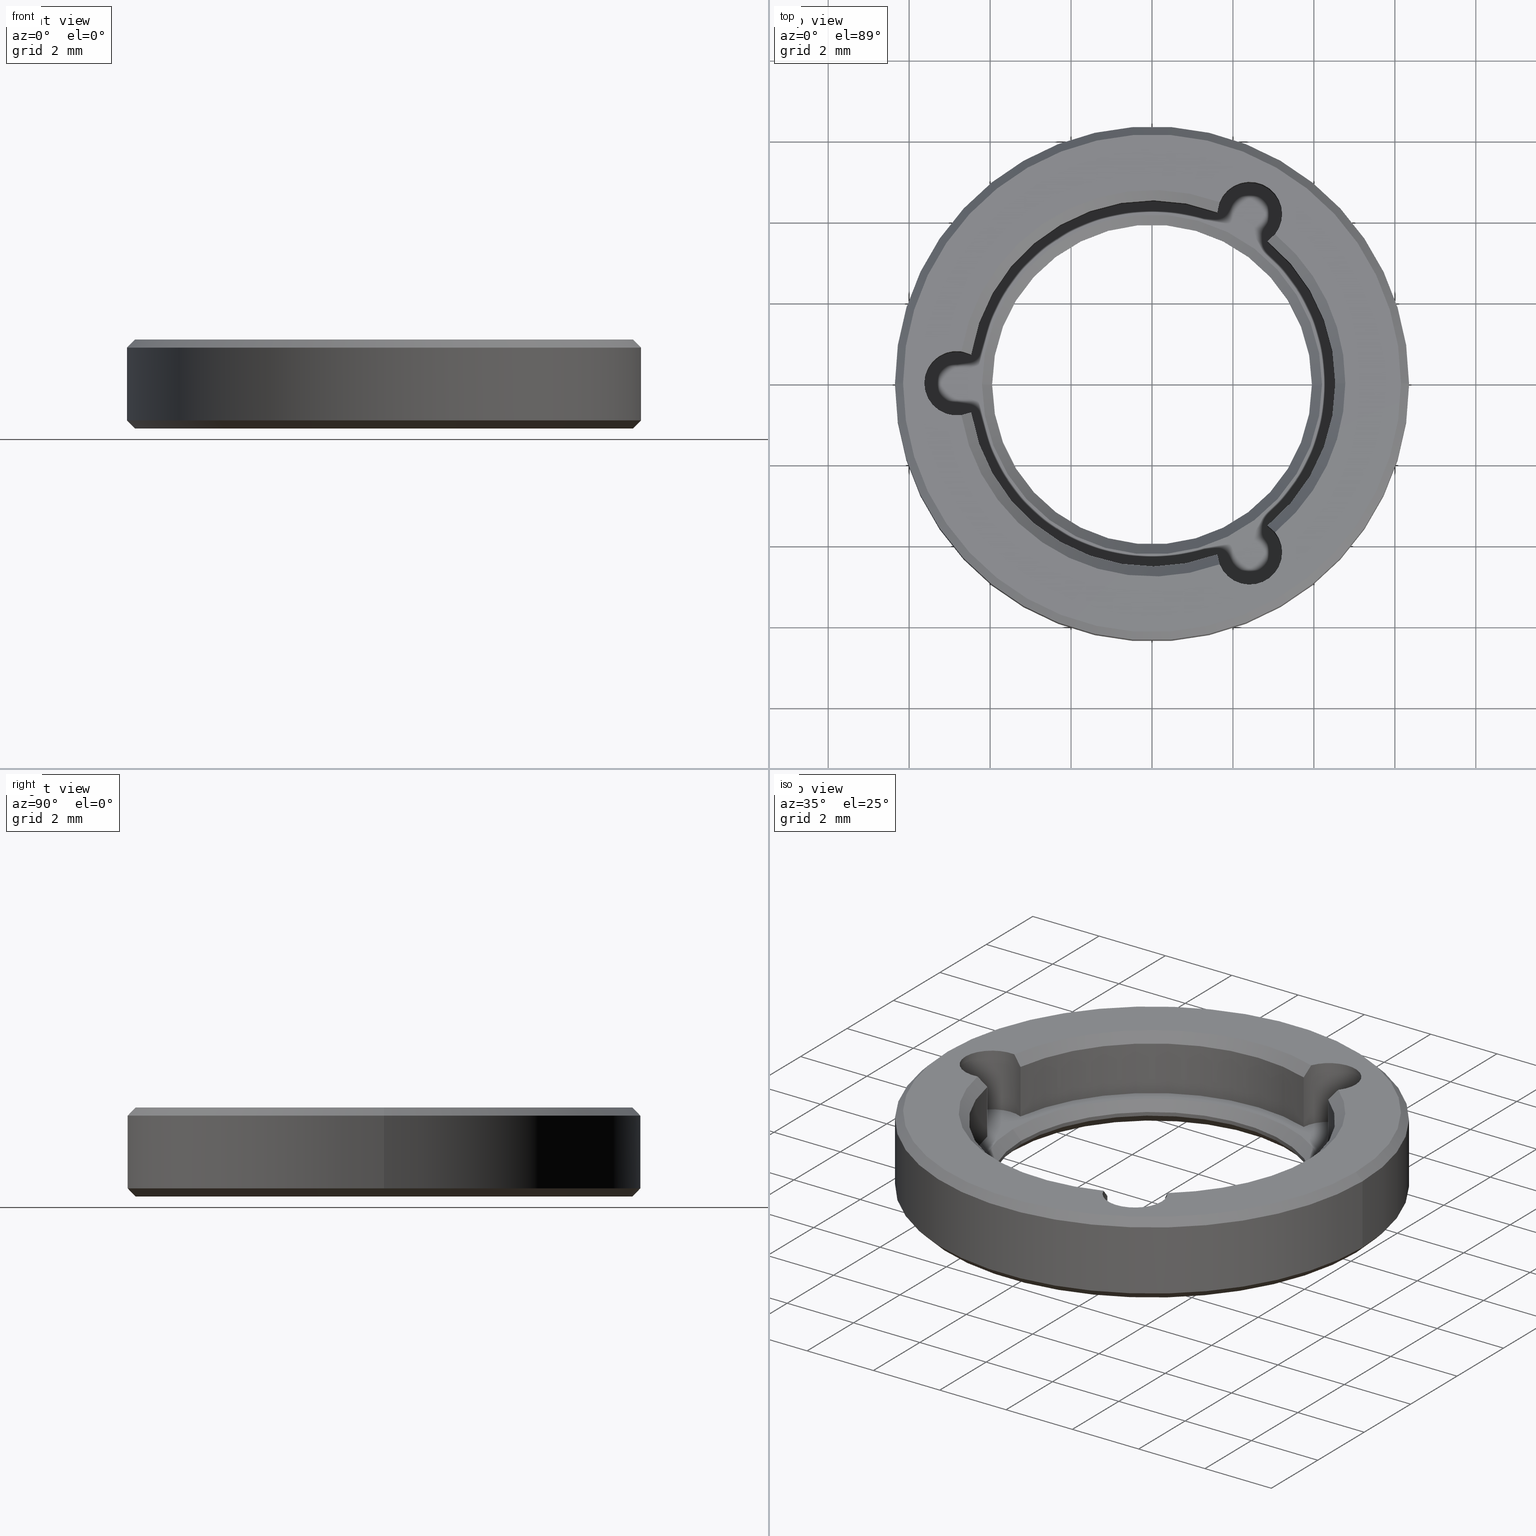
[diagram: canonical four-view strip — front | top / right | iso, engineering-drawing reading convention]
A machine part, canonical four-view strip (front | top / right | iso — engineering-drawing reading convention). The complete STEP part file that produces these views, byte-faithful:
ISO-10303-21;
HEADER;
FILE_DESCRIPTION (( 'STEP AP203' ),
    '1' );
FILE_NAME ('1.6.4.11-ZSJ-05-9.STEP',
    '2024-04-15T05:50:26',
    ( '' ),
    ( '' ),
    'SwSTEP 2.0',
    'SolidWorks 2021',
    '' );
FILE_SCHEMA (( 'CONFIG_CONTROL_DESIGN' ));
ENDSEC;

DATA;
#1 = AXIS2_PLACEMENT_3D ( 'NONE', #200, #195, #414 ) ;
#2 = DIRECTION ( 'NONE',  ( 1.000000000000000000, 0.000000000000000000, 0.000000000000000000 ) ) ;
#3 = ORIENTED_EDGE ( 'NONE', *, *, #457, .T. ) ;
#4 = LINE ( 'NONE', #705, #88 ) ;
#5 = CIRCLE ( 'NONE', #522, 0.8000000000000010436 ) ;
#6 = ADVANCED_FACE ( 'NONE', ( #176 ), #232, .F. ) ;
#7 = FACE_OUTER_BOUND ( 'NONE', #592, .T. ) ;
#8 = CARTESIAN_POINT ( 'NONE',  ( 2.854015513596384501, -3.511441363336595511, 1.949999999999996181 ) ) ;
#9 = ORIENTED_EDGE ( 'NONE', *, *, #756, .T. ) ;
#10 = CC_DESIGN_DATE_AND_TIME_ASSIGNMENT ( #343, #194, ( #684 ) ) ;
#11 = CARTESIAN_POINT ( 'NONE',  ( -4.708937823834204117, -0.7915362096983699081, 2.200000000000000178 ) ) ;
#12 = DIRECTION ( 'NONE',  ( -0.000000000000000000, -0.000000000000000000, 1.000000000000000000 ) ) ;
#13 = VERTEX_POINT ( 'NONE', #448 ) ;
#14 = AXIS2_PLACEMENT_3D ( 'NONE', #631, #621, #826 ) ;
#15 = CIRCLE ( 'NONE', #471, 4.775000000000006573 ) ;
#16 = CC_DESIGN_APPROVAL ( #629, ( #122 ) ) ;
#17 = CARTESIAN_POINT ( 'NONE',  ( 4.199999999999995737, 0.000000000000000000, 0.6000000000000000888 ) ) ;
#18 = VECTOR ( 'NONE', #400, 1000.000000000000000 ) ;
#19 = EDGE_LOOP ( 'NONE', ( #141, #249, #145, #603 ) ) ;
#20 = CARTESIAN_POINT ( 'NONE',  ( 0.000000000000000000, 0.000000000000000000, 2.200000000000000178 ) ) ;
#21 = EDGE_CURVE ( 'NONE', #678, #889, #741, .T. ) ;
#22 = EDGE_LOOP ( 'NONE', ( #658, #445, #3, #872, #226, #662 ) ) ;
#23 = CARTESIAN_POINT ( 'NONE',  ( 2.412500000000020517, -4.178572573259906164, -1.662741699796955741 ) ) ;
#24 = ORIENTED_EDGE ( 'NONE', *, *, #762, .T. ) ;
#25 = DIRECTION ( 'NONE',  ( -0.000000000000000000, -0.000000000000000000, -1.000000000000000000 ) ) ;
#26 = ORIENTED_EDGE ( 'NONE', *, *, #344, .T. ) ;
#27 = DIRECTION ( 'NONE',  ( 1.000000000000000000, 0.000000000000000000, 0.000000000000000000 ) ) ;
#28 = ORIENTED_EDGE ( 'NONE', *, *, #777, .T. ) ;
#29 = CARTESIAN_POINT ( 'NONE',  ( 1.668978446303088559, -4.473827885131008486, 2.200000000000000178 ) ) ;
#30 = ORIENTED_EDGE ( 'NONE', *, *, #847, .F. ) ;
#31 = CARTESIAN_POINT ( 'NONE',  ( -4.825000000000000178, -5.908920805885979576E-16, 2.200000000000000178 ) ) ;
#32 = VECTOR ( 'NONE', #644, 1000.000000000000000 ) ;
#33 = VERTEX_POINT ( 'NONE', #101 ) ;
#34 = CYLINDRICAL_SURFACE ( 'NONE', #695, 4.525000000000000355 ) ;
#35 = VERTEX_POINT ( 'NONE', #676 ) ;
#36 = ADVANCED_FACE ( 'NONE', ( #387 ), #610, .F. ) ;
#37 = ORIENTED_EDGE ( 'NONE', *, *, #140, .F. ) ;
#38 = DIRECTION ( 'NONE',  ( -0.000000000000000000, -0.000000000000000000, -1.000000000000000000 ) ) ;
#39 = VERTEX_POINT ( 'NONE', #126 ) ;
#40 = DIRECTION ( 'NONE',  ( 0.000000000000000000, 0.000000000000000000, 1.000000000000000000 ) ) ;
#41 = ORIENTED_EDGE ( 'NONE', *, *, #84, .T. ) ;
#42 = CARTESIAN_POINT ( 'NONE',  ( 4.525000000000000355, 0.000000000000000000, 1.949999999999996403 ) ) ;
#43 = DIRECTION ( 'NONE',  ( 1.000000000000000000, 0.000000000000000000, 0.000000000000000000 ) ) ;
#44 = PERSON_AND_ORGANIZATION_ROLE ( 'creator' ) ;
#45 = CIRCLE ( 'NONE', #577, 6.150000000000000355 ) ;
#46 = CIRCLE ( 'NONE', #185, 4.199999999999999289 ) ;
#47 = CARTESIAN_POINT ( 'NONE',  ( 0.000000000000000000, 0.000000000000000000, 2.000000000000000444 ) ) ;
#48 = EDGE_LOOP ( 'NONE', ( #543, #863, #382, #514 ) ) ;
#49 = EDGE_CURVE ( 'NONE', #845, #97, #480, .T. ) ;
#50 = PERSON_AND_ORGANIZATION ( #478, #473 ) ;
#51 = DIRECTION ( 'NONE',  ( 0.7071067811865490160, 0.000000000000000000, 0.7071067811865460184 ) ) ;
#52 = B_SPLINE_CURVE_WITH_KNOTS ( 'NONE', 3,
 ( #744, #604, #250, #525 ),
 .UNSPECIFIED., .F., .F.,
 ( 4, 4 ),
 ( 2.877911722892435150E-07, 0.0003556255877489018866 ),
 .UNSPECIFIED. ) ;
#53 = LINE ( 'NONE', #558, #477 ) ;
#54 = EDGE_CURVE ( 'NONE', #727, #39, #818, .T. ) ;
#55 = SECURITY_CLASSIFICATION_LEVEL ( 'unclassified' ) ;
#56 = CARTESIAN_POINT ( 'NONE',  ( 0.000000000000000000, 0.000000000000000000, 0.6000000000000000888 ) ) ;
#57 = CYLINDRICAL_SURFACE ( 'NONE', #61, 4.525000000000000355 ) ;
#58 = ADVANCED_FACE ( 'NONE', ( #755 ), #625, .F. ) ;
#59 = FACE_OUTER_BOUND ( 'NONE', #781, .T. ) ;
#60 = VECTOR ( 'NONE', #868, 1000.000000000000000 ) ;
#61 = AXIS2_PLACEMENT_3D ( 'NONE', #342, #274, #642 ) ;
#62 = FACE_OUTER_BOUND ( 'NONE', #261, .T. ) ;
#63 = VECTOR ( 'NONE', #553, 1000.000000000000114 ) ;
#64 = DATE_TIME_ROLE ( 'classification_date' ) ;
#65 = DIRECTION ( 'NONE',  ( -0.000000000000000000, 0.000000000000000000, 1.000000000000000000 ) ) ;
#66 = CARTESIAN_POINT ( 'NONE',  ( 2.412499999999960565, 4.178572573259939027, -1.662741699796954853 ) ) ;
#67 = PLANE ( 'NONE',  #198 ) ;
#68 = DIRECTION ( 'NONE',  ( 1.000000000000000000, 0.000000000000000000, 0.000000000000000000 ) ) ;
#69 = PRODUCT_DEFINITION_SHAPE ( 'NONE', 'NONE',  #684 ) ;
#70 = DIRECTION ( 'NONE',  ( 0.000000000000000000, 0.000000000000000000, 1.000000000000000000 ) ) ;
#71 = ORIENTED_EDGE ( 'NONE', *, *, #356, .F. ) ;
#72 = DIRECTION ( 'NONE',  ( 1.000000000000000000, 0.000000000000000000, 0.000000000000000000 ) ) ;
#73 = AXIS2_PLACEMENT_3D ( 'NONE', #489, #83, #288 ) ;
#74 = ADVANCED_FACE ( 'NONE', ( #415 ), #795, .T. ) ;
#75 = CIRCLE ( 'NONE', #103, 0.8000000000000009326 ) ;
#76 = CARTESIAN_POINT ( 'NONE',  ( 2.412500000000020517, -4.178572573259906164, 2.200000000000000178 ) ) ;
#77 = DIRECTION ( 'NONE',  ( 1.000000000000000000, 0.000000000000000000, 0.000000000000000000 ) ) ;
#78 = ORIENTED_EDGE ( 'NONE', *, *, #602, .F. ) ;
#79 = EDGE_CURVE ( 'NONE', #35, #815, #5, .T. ) ;
#80 = DIRECTION ( 'NONE',  ( -0.000000000000000000, -0.000000000000000000, 1.000000000000000000 ) ) ;
#81 = CARTESIAN_POINT ( 'NONE',  ( 0.000000000000000000, 0.000000000000000000, 0.000000000000000000 ) ) ;
#82 = VERTEX_POINT ( 'NONE', #700 ) ;
#83 = DIRECTION ( 'NONE',  ( 0.000000000000000000, 0.000000000000000000, 1.000000000000000000 ) ) ;
#84 = EDGE_CURVE ( 'NONE', #793, #462, #171, .T. ) ;
#85 = DIRECTION ( 'NONE',  ( 0.000000000000000000, 0.000000000000000000, 1.000000000000000000 ) ) ;
#86 = ORIENTED_EDGE ( 'NONE', *, *, #84, .F. ) ;
#87 = CONICAL_SURFACE ( 'NONE', #748, 3.950000000000000178, 0.7853981633974517207 ) ;
#88 = VECTOR ( 'NONE', #516, 1000.000000000000000 ) ;
#89 = AXIS2_PLACEMENT_3D ( 'NONE', #737, #666, #252 ) ;
#90 = DIRECTION ( 'NONE',  ( 1.000000000000000000, 0.000000000000000000, 0.000000000000000000 ) ) ;
#91 = ADVANCED_FACE ( 'NONE', ( #764 ), #201, .F. ) ;
#92 = CARTESIAN_POINT ( 'NONE',  ( 2.412500000000020517, -4.178572573259906164, 0.6000000000000003109 ) ) ;
#93 = ORIENTED_EDGE ( 'NONE', *, *, #322, .F. ) ;
#94 =( NAMED_UNIT ( * ) SI_UNIT ( $, .STERADIAN. ) SOLID_ANGLE_UNIT ( ) );
#95 = ORIENTED_EDGE ( 'NONE', *, *, #468, .T. ) ;
#96 = CARTESIAN_POINT ( 'NONE',  ( 2.854015513596333875, 3.511441363336634147, 1.400000000000000133 ) ) ;
#97 = VERTEX_POINT ( 'NONE', #409 ) ;
#98 = LINE ( 'NONE', #593, #652 ) ;
#99 = ORIENTED_EDGE ( 'NONE', *, *, #248, .F. ) ;
#100 = CARTESIAN_POINT ( 'NONE',  ( -6.150000000000000355, 7.654042494670957606E-16, 0.000000000000000000 ) ) ;
#101 = CARTESIAN_POINT ( 'NONE',  ( -3.950000000000000178, 4.837354856632045057E-16, 0.3500000000000067502 ) ) ;
#102 = EDGE_CURVE ( 'NONE', #574, #143, #365, .T. ) ;
#103 = AXIS2_PLACEMENT_3D ( 'NONE', #305, #645, #862 ) ;
#104 = DIRECTION ( 'NONE',  ( 1.000000000000000000, 0.000000000000000000, 0.000000000000000000 ) ) ;
#105 = APPROVAL_PERSON_ORGANIZATION ( #336, #629, #822 ) ;
#106 = ORIENTED_EDGE ( 'NONE', *, *, #225, .T. ) ;
#107 = DIRECTION ( 'NONE',  ( -0.000000000000000000, -0.000000000000000000, -1.000000000000000000 ) ) ;
#108 = AXIS2_PLACEMENT_3D ( 'NONE', #520, #107, #798 ) ;
#109 = EDGE_LOOP ( 'NONE', ( #161, #245, #524, #506 ) ) ;
#110 = EDGE_CURVE ( 'NONE', #379, #443, #904, .T. ) ;
#111 = FACE_OUTER_BOUND ( 'NONE', #797, .T. ) ;
#112 = ORIENTED_EDGE ( 'NONE', *, *, #352, .F. ) ;
#113 = LINE ( 'NONE', #42, #18 ) ;
#114 = ORIENTED_EDGE ( 'NONE', *, *, #262, .T. ) ;
#115 = DIRECTION ( 'NONE',  ( 1.000000000000000000, 0.000000000000000000, -0.000000000000000000 ) ) ;
#116 = EDGE_CURVE ( 'NONE', #33, #889, #53, .T. ) ;
#117 = CARTESIAN_POINT ( 'NONE',  ( 1.613989667750742374, 4.227370619237664329, 1.400000000000000133 ) ) ;
#118 = ORIENTED_EDGE ( 'NONE', *, *, #751, .F. ) ;
#119 = AXIS2_PLACEMENT_3D ( 'NONE', #295, #501, #655 ) ;
#120 = CIRCLE ( 'NONE', #531, 3.950000000000000178 ) ;
#121 = LINE ( 'NONE', #832, #827 ) ;
#122 = PRODUCT_DEFINITION_FORMATION_WITH_SPECIFIED_SOURCE ( '�κ�', '', #573, .NOT_KNOWN. ) ;
#123 = ORIENTED_EDGE ( 'NONE', *, *, #829, .T. ) ;
#124 = DIRECTION ( 'NONE',  ( -0.000000000000000000, -0.000000000000000000, -1.000000000000000000 ) ) ;
#125 = AXIS2_PLACEMENT_3D ( 'NONE', #703, #634, #68 ) ;
#126 = CARTESIAN_POINT ( 'NONE',  ( 3.950000000000000178, 0.000000000000000000, 0.2499999999999985012 ) ) ;
#127 = ADVANCED_FACE ( 'NONE', ( #546 ), #712, .T. ) ;
#128 = CYLINDRICAL_SURFACE ( 'NONE', #721, 3.950000000000000178 ) ;
#129 = DIRECTION ( 'NONE',  ( 1.000000000000000000, 0.000000000000000000, -0.000000000000000000 ) ) ;
#130 = ADVANCED_FACE ( 'NONE', ( #62, #841 ), #216, .F. ) ;
#131 = APPROVAL_STATUS ( 'not_yet_approved' ) ;
#132 = CYLINDRICAL_SURFACE ( 'NONE', #696, 6.349999999999999645 ) ;
#133 = CIRCLE ( 'NONE', #486, 0.8000000000000009326 ) ;
#134 = DIRECTION ( 'NONE',  ( -0.000000000000000000, -0.000000000000000000, -1.000000000000000000 ) ) ;
#135 = CIRCLE ( 'NONE', #657, 4.199999999999999289 ) ;
#136 = COORDINATED_UNIVERSAL_TIME_OFFSET ( 8, 0, .AHEAD. ) ;
#137 = DIRECTION ( 'NONE',  ( 0.000000000000000000, 0.000000000000000000, 1.000000000000000000 ) ) ;
#138 = DIRECTION ( 'NONE',  ( -1.000000000000000000, 0.000000000000000000, 0.000000000000000000 ) ) ;
#139 = DIRECTION ( 'NONE',  ( -0.000000000000000000, -0.000000000000000000, 1.000000000000000000 ) ) ;
#140 = EDGE_CURVE ( 'NONE', #674, #82, #884, .T. ) ;
#141 = ORIENTED_EDGE ( 'NONE', *, *, #616, .T. ) ;
#142 = CARTESIAN_POINT ( 'NONE',  ( 2.854015513596383613, -3.511441363336594623, 1.400000000000000133 ) ) ;
#143 = VERTEX_POINT ( 'NONE', #205 ) ;
#144 = CARTESIAN_POINT ( 'NONE',  ( 4.525000000000000355, 0.000000000000000000, 1.949999999999996403 ) ) ;
#145 = ORIENTED_EDGE ( 'NONE', *, *, #751, .T. ) ;
#146 = DIRECTION ( 'NONE',  ( -0.000000000000000000, -0.000000000000000000, -1.000000000000000000 ) ) ;
#147 = CC_DESIGN_PERSON_AND_ORGANIZATION_ASSIGNMENT ( #197, #44, ( #122 ) ) ;
#148 = CIRCLE ( 'NONE', #668, 0.8000000000000010436 ) ;
#149 = EDGE_LOOP ( 'NONE', ( #37, #95, #236, #265 ) ) ;
#150 = AXIS2_PLACEMENT_3D ( 'NONE', #31, #303, #27 ) ;
#151 = AXIS2_PLACEMENT_3D ( 'NONE', #20, #146, #858 ) ;
#152 = B_SPLINE_CURVE_WITH_KNOTS ( 'NONE', 3,
 ( #190, #390, #682, #601 ),
 .UNSPECIFIED., .F., .F.,
 ( 4, 4 ),
 ( 2.877911693908816874E-07, 0.0003556255877460030553 ),
 .UNSPECIFIED. ) ;
#153 = CONICAL_SURFACE ( 'NONE', #811, 3.950000000000000178, 0.7853981633974517207 ) ;
#154 = DIRECTION ( 'NONE',  ( 1.000000000000000000, 0.000000000000000000, 0.000000000000000000 ) ) ;
#155 = DIRECTION ( 'NONE',  ( 1.000000000000000000, -2.168404344971006501E-15, 0.000000000000000000 ) ) ;
#156 = EDGE_LOOP ( 'NONE', ( #766, #41, #806, #178, #310 ) ) ;
#157 = EDGE_CURVE ( 'NONE', #251, #799, #455, .T. ) ;
#158 = CARTESIAN_POINT ( 'NONE',  ( 0.000000000000000000, 0.000000000000000000, 0.6000000000000000888 ) ) ;
#159 = VERTEX_POINT ( 'NONE', #476 ) ;
#160 = FACE_OUTER_BOUND ( 'NONE', #109, .T. ) ;
#161 = ORIENTED_EDGE ( 'NONE', *, *, #834, .F. ) ;
#162 = PRODUCT_RELATED_PRODUCT_CATEGORY ( 'detail', '', ( #573 ) ) ;
#163 = DIRECTION ( 'NONE',  ( 0.000000000000000000, 0.000000000000000000, 1.000000000000000000 ) ) ;
#164 = DIRECTION ( 'NONE',  ( 0.000000000000000000, 0.000000000000000000, 1.000000000000000000 ) ) ;
#165 = ORIENTED_EDGE ( 'NONE', *, *, #438, .T. ) ;
#166 = CONICAL_SURFACE ( 'NONE', #119, 4.199999999999999289, 0.7853981633974482790 ) ;
#167 = CIRCLE ( 'NONE', #150, 0.8000000000000012657 ) ;
#168 = EDGE_LOOP ( 'NONE', ( #403, #710, #641, #335 ) ) ;
#169 = LINE ( 'NONE', #96, #411 ) ;
#170 = ORIENTED_EDGE ( 'NONE', *, *, #565, .F. ) ;
#171 = CIRCLE ( 'NONE', #125, 0.8000000000000008216 ) ;
#172 = DIRECTION ( 'NONE',  ( 0.7071067811865474617, 8.659560562354932858E-17, -0.7071067811865474617 ) ) ;
#173 = ORIENTED_EDGE ( 'NONE', *, *, #356, .T. ) ;
#174 = FACE_OUTER_BOUND ( 'NONE', #316, .T. ) ;
#175 = EDGE_CURVE ( 'NONE', #451, #239, #750, .T. ) ;
#176 = FACE_OUTER_BOUND ( 'NONE', #882, .T. ) ;
#177 = CARTESIAN_POINT ( 'NONE',  ( -4.199999999999995737, 5.143516556418877011E-16, 0.6000000000000000888 ) ) ;
#178 = ORIENTED_EDGE ( 'NONE', *, *, #879, .T. ) ;
#179 = CARTESIAN_POINT ( 'NONE',  ( 3.039959377531102014, 3.682291675432675770, 2.200000000000000178 ) ) ;
#180 = EDGE_LOOP ( 'NONE', ( #528, #306 ) ) ;
#181 = ADVANCED_FACE ( 'NONE', ( #901 ), #57, .F. ) ;
#182 = AXIS2_PLACEMENT_3D ( 'NONE', #537, #808, #396 ) ;
#183 = VECTOR ( 'NONE', #691, 1000.000000000000114 ) ;
#184 = APPLICATION_PROTOCOL_DEFINITION ( 'international standard', 'config_control_design', 1994, #432 ) ;
#185 = AXIS2_PLACEMENT_3D ( 'NONE', #647, #163, #362 ) ;
#186 = EDGE_LOOP ( 'NONE', ( #661, #24, #740, #93, #791, #771, #359, #849, #460 ) ) ;
#187 = CARTESIAN_POINT ( 'NONE',  ( 3.212499999999961275, 4.178572573259939027, -1.662741699796954853 ) ) ;
#188 = ORIENTED_EDGE ( 'NONE', *, *, #565, .T. ) ;
#189 = EDGE_CURVE ( 'NONE', #385, #462, #515, .T. ) ;
#190 = CARTESIAN_POINT ( 'NONE',  ( 2.854015513596336096, 3.511441363336635479, 1.949999999999996403 ) ) ;
#191 = ORIENTED_EDGE ( 'NONE', *, *, #736, .T. ) ;
#192 = DIRECTION ( 'NONE',  ( -0.000000000000000000, -0.000000000000000000, 1.000000000000000000 ) ) ;
#193 = ORIENTED_EDGE ( 'NONE', *, *, #692, .T. ) ;
#194 = DATE_TIME_ROLE ( 'creation_date' ) ;
#195 = DIRECTION ( 'NONE',  ( -0.000000000000000000, -0.000000000000000000, 1.000000000000000000 ) ) ;
#196 = EDGE_LOOP ( 'NONE', ( #605, #391, #779, #564 ) ) ;
#197 = PERSON_AND_ORGANIZATION ( #478, #473 ) ;
#198 = AXIS2_PLACEMENT_3D ( 'NONE', #549, #630, #828 ) ;
#199 = AXIS2_PLACEMENT_3D ( 'NONE', #770, #780, #848 ) ;
#200 = CARTESIAN_POINT ( 'NONE',  ( 0.000000000000000000, 0.000000000000000000, 0.000000000000000000 ) ) ;
#201 = CYLINDRICAL_SURFACE ( 'NONE', #246, 0.8000000000000008216 ) ;
#202 = PERSON_AND_ORGANIZATION_ROLE ( 'creator' ) ;
#203 = FACE_OUTER_BOUND ( 'NONE', #608, .T. ) ;
#204 = VECTOR ( 'NONE', #277, 1000.000000000000000 ) ;
#205 = CARTESIAN_POINT ( 'NONE',  ( -6.149999999999999467, 0.000000000000000000, 2.200000000000000178 ) ) ;
#206 = CC_DESIGN_DATE_AND_TIME_ASSIGNMENT ( #209, #64, ( #653 ) ) ;
#207 = CARTESIAN_POINT ( 'NONE',  ( 1.613989667750802770, -4.227370619237643012, 1.949999999999996181 ) ) ;
#208 = DIRECTION ( 'NONE',  ( -0.000000000000000000, 0.000000000000000000, 1.000000000000000000 ) ) ;
#209 = DATE_AND_TIME ( #697, #333 ) ;
#210 = CARTESIAN_POINT ( 'NONE',  ( -4.468005181347147747, 0.7159292559010406176, 0.6000000000000003109 ) ) ;
#211 = CIRCLE ( 'NONE', #638, 3.950000000000000178 ) ;
#212 = AXIS2_PLACEMENT_3D ( 'NONE', #579, #783, #568 ) ;
#213 = CARTESIAN_POINT ( 'NONE',  ( 0.000000000000000000, 0.000000000000000000, 2.200000000000000178 ) ) ;
#214 = EDGE_CURVE ( 'NONE', #379, #464, #595, .T. ) ;
#215 = DIRECTION ( 'NONE',  ( -0.000000000000000000, -0.000000000000000000, -1.000000000000000000 ) ) ;
#216 = PLANE ( 'NONE',  #606 ) ;
#217 = EDGE_CURVE ( 'NONE', #727, #33, #4, .T. ) ;
#218 = DIRECTION ( 'NONE',  ( 1.000000000000000000, 0.000000000000000000, 0.000000000000000000 ) ) ;
#219 = VERTEX_POINT ( 'NONE', #649 ) ;
#220 = CARTESIAN_POINT ( 'NONE',  ( 2.412499999999960565, 4.178572573259939027, 2.200000000000000178 ) ) ;
#221 = ORIENTED_EDGE ( 'NONE', *, *, #481, .T. ) ;
#222 = CYLINDRICAL_SURFACE ( 'NONE', #499, 0.8000000000000008216 ) ;
#223 = CARTESIAN_POINT ( 'NONE',  ( 0.000000000000000000, 0.000000000000000000, 0.6000000000000000888 ) ) ;
#224 = CIRCLE ( 'NONE', #182, 6.349999999999999645 ) ;
#225 = EDGE_CURVE ( 'NONE', #443, #674, #311, .T. ) ;
#226 = ORIENTED_EDGE ( 'NONE', *, *, #788, .T. ) ;
#227 = AXIS2_PLACEMENT_3D ( 'NONE', #765, #368, #571 ) ;
#228 = LOCAL_TIME ( 13, 50, 26.00000000000000000, #472 ) ;
#229 = DIRECTION ( 'NONE',  ( 1.000000000000000000, 0.000000000000000000, 0.000000000000000000 ) ) ;
#230 = CARTESIAN_POINT ( 'NONE',  ( 4.775000000000006573, 0.000000000000000000, 2.200000000000000178 ) ) ;
#231 = ORIENTED_EDGE ( 'NONE', *, *, #616, .F. ) ;
#232 = CONICAL_SURFACE ( 'NONE', #539, 4.525000000000000355, 0.7853981633974533860 ) ;
#233 = CARTESIAN_POINT ( 'NONE',  ( 0.000000000000000000, 0.000000000000000000, 2.200000000000000178 ) ) ;
#234 = VERTEX_POINT ( 'NONE', #360 ) ;
#235 = DIRECTION ( 'NONE',  ( 0.000000000000000000, 0.000000000000000000, 1.000000000000000000 ) ) ;
#236 = ORIENTED_EDGE ( 'NONE', *, *, #762, .F. ) ;
#237 = CARTESIAN_POINT ( 'NONE',  ( 0.000000000000000000, 0.000000000000000000, 0.000000000000000000 ) ) ;
#238 = DIRECTION ( 'NONE',  ( 1.000000000000000000, 0.000000000000000000, 0.000000000000000000 ) ) ;
#239 = VERTEX_POINT ( 'NONE', #426 ) ;
#240 = AXIS2_PLACEMENT_3D ( 'NONE', #874, #38, #264 ) ;
#241 = CARTESIAN_POINT ( 'NONE',  ( 0.000000000000000000, 0.000000000000000000, 0.3500000000000067502 ) ) ;
#242 = EDGE_CURVE ( 'NONE', #97, #239, #825, .T. ) ;
#243 = ORIENTED_EDGE ( 'NONE', *, *, #449, .F. ) ;
#244 = DIRECTION ( 'NONE',  ( -0.000000000000000000, -0.000000000000000000, 1.000000000000000000 ) ) ;
#245 = ORIENTED_EDGE ( 'NONE', *, *, #54, .F. ) ;
#246 = AXIS2_PLACEMENT_3D ( 'NONE', #66, #208, #830 ) ;
#247 = CARTESIAN_POINT ( 'NONE',  ( 6.349999999999999645, 7.776507174585692163E-16, 2.000000000000000444 ) ) ;
#248 = EDGE_CURVE ( 'NONE', #321, #451, #45, .T. ) ;
#249 = ORIENTED_EDGE ( 'NONE', *, *, #217, .T. ) ;
#250 = CARTESIAN_POINT ( 'NONE',  ( -4.625534567590876556, 0.7793068722400069426, 2.115723411230565620 ) ) ;
#251 = VERTEX_POINT ( 'NONE', #230 ) ;
#252 = DIRECTION ( 'NONE',  ( 1.000000000000000000, 0.000000000000000000, 0.000000000000000000 ) ) ;
#253 = VERTEX_POINT ( 'NONE', #718 ) ;
#254 = CARTESIAN_POINT ( 'NONE',  ( 4.525000000000000355, 0.000000000000000000, 0.6000000000000000888 ) ) ;
#255 = DIRECTION ( 'NONE',  ( -0.000000000000000000, -0.000000000000000000, 1.000000000000000000 ) ) ;
#256 = EDGE_CURVE ( 'NONE', #143, #574, #559, .T. ) ;
#257 = AXIS2_PLACEMENT_3D ( 'NONE', #699, #65, #276 ) ;
#258 = DIRECTION ( 'NONE',  ( -0.5000000000000039968, 0.8660254037844362651, 0.000000000000000000 ) ) ;
#259 = VERTEX_POINT ( 'NONE', #495 ) ;
#260 = CARTESIAN_POINT ( 'NONE',  ( 6.149999999999999467, 7.531577814756219106E-16, 2.200000000000000178 ) ) ;
#261 = EDGE_LOOP ( 'NONE', ( #434, #441 ) ) ;
#262 = EDGE_CURVE ( 'NONE', #799, #443, #557, .T. ) ;
#263 = APPROVAL_STATUS ( 'not_yet_approved' ) ;
#264 = DIRECTION ( 'NONE',  ( 1.000000000000000000, 0.000000000000000000, 0.000000000000000000 ) ) ;
#265 = ORIENTED_EDGE ( 'NONE', *, *, #879, .F. ) ;
#266 = DATE_AND_TIME ( #349, #866 ) ;
#267 = CARTESIAN_POINT ( 'NONE',  ( 0.000000000000000000, 0.000000000000000000, 2.200000000000000178 ) ) ;
#268 = CARTESIAN_POINT ( 'NONE',  ( 0.000000000000000000, 0.000000000000000000, 0.6000000000000000888 ) ) ;
#269 = ADVANCED_FACE ( 'NONE', ( #160 ), #166, .F. ) ;
#270 = FACE_BOUND ( 'NONE', #180, .T. ) ;
#271 = DIRECTION ( 'NONE',  ( 1.000000000000000000, 0.000000000000000000, 0.000000000000000000 ) ) ;
#272 = CONICAL_SURFACE ( 'NONE', #807, 4.525000000000000355, 0.7853981633974533860 ) ;
#273 = CYLINDRICAL_SURFACE ( 'NONE', #257, 0.8000000000000008216 ) ;
#274 = DIRECTION ( 'NONE',  ( -0.000000000000000000, -0.000000000000000000, 1.000000000000000000 ) ) ;
#275 = PERSON_AND_ORGANIZATION ( #478, #473 ) ;
#276 = DIRECTION ( 'NONE',  ( 1.000000000000000000, 0.000000000000000000, 0.000000000000000000 ) ) ;
#277 = DIRECTION ( 'NONE',  ( 0.000000000000000000, -0.000000000000000000, 1.000000000000000000 ) ) ;
#278 = EDGE_CURVE ( 'NONE', #431, #35, #148, .T. ) ;
#279 = FACE_OUTER_BOUND ( 'NONE', #19, .T. ) ;
#280 = AXIS2_PLACEMENT_3D ( 'NONE', #350, #836, #556 ) ;
#281 = CARTESIAN_POINT ( 'NONE',  ( 2.412499999999960565, 4.178572573259939027, 2.200000000000000178 ) ) ;
#282 = CC_DESIGN_SECURITY_CLASSIFICATION ( #653, ( #122 ) ) ;
#283 = ADVANCED_FACE ( 'NONE', ( #709 ), #345, .F. ) ;
#284 = DIRECTION ( 'NONE',  ( 0.000000000000000000, -0.000000000000000000, 1.000000000000000000 ) ) ;
#285 = CARTESIAN_POINT ( 'NONE',  ( 0.000000000000000000, 0.000000000000000000, 2.200000000000000178 ) ) ;
#286 = CLOSED_SHELL ( 'NONE', ( #648, #796, #127, #389, #860, #643, #294, #503, #637, #679, #407, #283, #181, #654, #289, #873, #130, #58, #623, #493, #6, #269, #823, #726, #74, #36, #702, #91 ) ) ;
#287 = ORIENTED_EDGE ( 'NONE', *, *, #428, .F. ) ;
#288 = DIRECTION ( 'NONE',  ( 1.000000000000000000, 0.000000000000000000, 0.000000000000000000 ) ) ;
#289 = ADVANCED_FACE ( 'NONE', ( #373 ), #435, .T. ) ;
#290 = LINE ( 'NONE', #572, #361 ) ;
#291 = EDGE_LOOP ( 'NONE', ( #71, #490, #304, #106 ) ) ;
#292 = FACE_OUTER_BOUND ( 'NONE', #843, .T. ) ;
#293 = APPLICATION_CONTEXT ( 'configuration controlled 3d designs of mechanical parts and assemblies' ) ;
#294 = ADVANCED_FACE ( 'NONE', ( #430 ), #272, .F. ) ;
#295 = CARTESIAN_POINT ( 'NONE',  ( 0.000000000000000000, 0.000000000000000000, 0.000000000000000000 ) ) ;
#296 = ORIENTED_EDGE ( 'NONE', *, *, #900, .F. ) ;
#297 = CIRCLE ( 'NONE', #108, 0.8000000000000008216 ) ;
#298 = LINE ( 'NONE', #846, #734 ) ;
#299 = VERTEX_POINT ( 'NONE', #660 ) ;
#300 = CARTESIAN_POINT ( 'NONE',  ( 2.987666832499100700, -3.616177005496755914, 2.115723411230573614 ) ) ;
#301 = ORIENTED_EDGE ( 'NONE', *, *, #665, .F. ) ;
#302 = AXIS2_PLACEMENT_3D ( 'NONE', #353, #837, #419 ) ;
#303 = DIRECTION ( 'NONE',  ( 0.000000000000000000, 0.000000000000000000, 1.000000000000000000 ) ) ;
#304 = ORIENTED_EDGE ( 'NONE', *, *, #110, .T. ) ;
#305 = CARTESIAN_POINT ( 'NONE',  ( 2.412500000000020517, -4.178572573259906164, 2.200000000000000178 ) ) ;
#306 = ORIENTED_EDGE ( 'NONE', *, *, #711, .T. ) ;
#307 = EDGE_LOOP ( 'NONE', ( #370, #375 ) ) ;
#308 = CARTESIAN_POINT ( 'NONE',  ( 4.525000000000000355, 0.000000000000000000, 0.6000000000000000888 ) ) ;
#309 = UNCERTAINTY_MEASURE_WITH_UNIT (LENGTH_MEASURE( 1.000000000000000082E-05 ), #876, 'distance_accuracy_value', 'NONE');
#310 = ORIENTED_EDGE ( 'NONE', *, *, #278, .T. ) ;
#311 = CIRCLE ( 'NONE', #212, 4.525000000000000355 ) ;
#312 = CIRCLE ( 'NONE', #787, 4.199999999999995737 ) ;
#313 = APPROVAL_PERSON_ORGANIZATION ( #757, #706, #332 ) ;
#314 = EDGE_CURVE ( 'NONE', #810, #239, #290, .T. ) ;
#315 = CARTESIAN_POINT ( 'NONE',  ( 0.000000000000000000, 0.000000000000000000, 2.200000000000000178 ) ) ;
#316 = EDGE_LOOP ( 'NONE', ( #296, #681, #331, #436 ) ) ;
#317 = DIRECTION ( 'NONE',  ( -0.000000000000000000, -0.000000000000000000, -1.000000000000000000 ) ) ;
#318 = ADVANCED_BREP_SHAPE_REPRESENTATION ( '1.6.4.11-ZSJ-05-9', ( #905, #89 ), #656 ) ;
#319 = ORIENTED_EDGE ( 'NONE', *, *, #438, .F. ) ;
#320 = AXIS2_PLACEMENT_3D ( 'NONE', #213, #348, #138 ) ;
#321 = VERTEX_POINT ( 'NONE', #364 ) ;
#322 = EDGE_CURVE ( 'NONE', #13, #799, #75, .T. ) ;
#323 = DIRECTION ( 'NONE',  ( 0.7071067811865500152, 0.000000000000000000, 0.7071067811865451302 ) ) ;
#324 = ORIENTED_EDGE ( 'NONE', *, *, #21, .F. ) ;
#325 = PLANE ( 'NONE',  #670 ) ;
#326 = ORIENTED_EDGE ( 'NONE', *, *, #79, .T. ) ;
#327 = CARTESIAN_POINT ( 'NONE',  ( 0.000000000000000000, 0.000000000000000000, 0.000000000000000000 ) ) ;
#328 = EDGE_CURVE ( 'NONE', #234, #664, #581, .T. ) ;
#329 = DIRECTION ( 'NONE',  ( -0.000000000000000000, -0.000000000000000000, -1.000000000000000000 ) ) ;
#330 = AXIS2_PLACEMENT_3D ( 'NONE', #422, #12, #72 ) ;
#331 = ORIENTED_EDGE ( 'NONE', *, *, #242, .F. ) ;
#332 = APPROVAL_ROLE ( '' ) ;
#333 = LOCAL_TIME ( 13, 50, 26.00000000000000000, #548 ) ;
#334 = LINE ( 'NONE', #888, #534 ) ;
#335 = ORIENTED_EDGE ( 'NONE', *, *, #404, .T. ) ;
#336 = PERSON_AND_ORGANIZATION ( #478, #473 ) ;
#337 = LINE ( 'NONE', #624, #533 ) ;
#338 = DIRECTION ( 'NONE',  ( 1.000000000000000000, 0.000000000000000000, 0.000000000000000000 ) ) ;
#339 = EDGE_CURVE ( 'NONE', #299, #678, #714, .T. ) ;
#340 = SHAPE_DEFINITION_REPRESENTATION ( #69, #318 ) ;
#341 = CARTESIAN_POINT ( 'NONE',  ( 6.149999999999999467, 7.654042494670954648E-16, 2.200000000000000178 ) ) ;
#342 = CARTESIAN_POINT ( 'NONE',  ( 0.000000000000000000, 0.000000000000000000, 0.6000000000000000888 ) ) ;
#343 = DATE_AND_TIME ( #544, #789 ) ;
#344 = EDGE_CURVE ( 'NONE', #793, #35, #381, .T. ) ;
#345 = CONICAL_SURFACE ( 'NONE', #199, 4.525000000000000355, 0.7853981633974533860 ) ;
#346 = CIRCLE ( 'NONE', #547, 6.349999999999999645 ) ;
#347 = CARTESIAN_POINT ( 'NONE',  ( 0.000000000000000000, 0.000000000000000000, 0.2499999999999985012 ) ) ;
#348 = DIRECTION ( 'NONE',  ( 0.000000000000000000, 0.000000000000000000, -1.000000000000000000 ) ) ;
#349 = CALENDAR_DATE ( 2024, 15, 4 ) ;
#350 = CARTESIAN_POINT ( 'NONE',  ( 0.000000000000000000, 0.000000000000000000, 0.3500000000000067502 ) ) ;
#351 = AXIS2_PLACEMENT_3D ( 'NONE', #398, #329, #730 ) ;
#352 = EDGE_CURVE ( 'NONE', #574, #845, #447, .T. ) ;
#353 = CARTESIAN_POINT ( 'NONE',  ( 0.000000000000000000, 0.000000000000000000, 2.200000000000000178 ) ) ;
#354 = DIRECTION ( 'NONE',  ( 0.000000000000000000, 0.000000000000000000, 1.000000000000000000 ) ) ;
#355 = DIRECTION ( 'NONE',  ( 0.000000000000000000, 0.000000000000000000, 1.000000000000000000 ) ) ;
#356 = EDGE_CURVE ( 'NONE', #385, #674, #885, .T. ) ;
#357 = CARTESIAN_POINT ( 'NONE',  ( -4.625534567590875668, -0.7793068722400078308, 2.115723411230566509 ) ) ;
#358 = CIRCLE ( 'NONE', #560, 0.8000000000000008216 ) ;
#359 = ORIENTED_EDGE ( 'NONE', *, *, #854, .F. ) ;
#360 = CARTESIAN_POINT ( 'NONE',  ( -4.468005181347147747, -0.7159292559010418389, 0.6000000000000003109 ) ) ;
#361 = VECTOR ( 'NONE', #25, 1000.000000000000000 ) ;
#362 = DIRECTION ( 'NONE',  ( 1.000000000000000000, 0.000000000000000000, 0.000000000000000000 ) ) ;
#363 = ORIENTED_EDGE ( 'NONE', *, *, #526, .T. ) ;
#364 = CARTESIAN_POINT ( 'NONE',  ( 6.150000000000000355, 0.000000000000000000, 0.000000000000000000 ) ) ;
#365 = CIRCLE ( 'NONE', #871, 6.149999999999999467 ) ;
#366 = EDGE_LOOP ( 'NONE', ( #527, #243, #723, #78 ) ) ;
#367 = EDGE_CURVE ( 'NONE', #810, #845, #224, .T. ) ;
#368 = DIRECTION ( 'NONE',  ( -0.000000000000000000, -0.000000000000000000, 1.000000000000000000 ) ) ;
#369 = CARTESIAN_POINT ( 'NONE',  ( 0.000000000000000000, 0.000000000000000000, 0.6000000000000000888 ) ) ;
#370 = ORIENTED_EDGE ( 'NONE', *, *, #256, .T. ) ;
#371 = CARTESIAN_POINT ( 'NONE',  ( 1.613989667750802770, -4.227370619237641236, 1.400000000000000133 ) ) ;
#372 = ORIENTED_EDGE ( 'NONE', *, *, #475, .T. ) ;
#373 = FACE_OUTER_BOUND ( 'NONE', #590, .T. ) ;
#374 = CIRCLE ( 'NONE', #440, 4.775000000000006573 ) ;
#375 = ORIENTED_EDGE ( 'NONE', *, *, #102, .T. ) ;
#376 = DIRECTION ( 'NONE',  ( 0.000000000000000000, -0.000000000000000000, 1.000000000000000000 ) ) ;
#377 = DIRECTION ( 'NONE',  ( -0.000000000000000000, -0.000000000000000000, -1.000000000000000000 ) ) ;
#378 = EDGE_CURVE ( 'NONE', #82, #462, #169, .T. ) ;
#379 = VERTEX_POINT ( 'NONE', #739 ) ;
#380 = ORIENTED_EDGE ( 'NONE', *, *, #214, .T. ) ;
#381 = LINE ( 'NONE', #187, #698 ) ;
#382 = ORIENTED_EDGE ( 'NONE', *, *, #788, .F. ) ;
#383 = EDGE_CURVE ( 'NONE', #614, #159, #498, .T. ) ;
#384 = DIRECTION ( 'NONE',  ( 0.000000000000000000, 0.000000000000000000, 1.000000000000000000 ) ) ;
#385 = VERTEX_POINT ( 'NONE', #308 ) ;
#386 = DIRECTION ( 'NONE',  ( 1.000000000000000000, 0.000000000000000000, 0.000000000000000000 ) ) ;
#387 = FACE_OUTER_BOUND ( 'NONE', #22, .T. ) ;
#388 = AXIS2_PLACEMENT_3D ( 'NONE', #824, #124, #899 ) ;
#389 = ADVANCED_FACE ( 'NONE', ( #174 ), #850, .T. ) ;
#390 = CARTESIAN_POINT ( 'NONE',  ( 2.925950478982872749, 3.559048794552191808, 2.032314742620040082 ) ) ;
#391 = ORIENTED_EDGE ( 'NONE', *, *, #352, .T. ) ;
#392 = DIRECTION ( 'NONE',  ( 0.7071067811865490160, 8.659560562354950115E-17, -0.7071067811865459074 ) ) ;
#393 = ORIENTED_EDGE ( 'NONE', *, *, #322, .T. ) ;
#394 = CARTESIAN_POINT ( 'NONE',  ( 1.613989667750742374, 4.227370619237666993, 1.949999999999996625 ) ) ;
#395 = ORIENTED_EDGE ( 'NONE', *, *, #328, .F. ) ;
#396 = DIRECTION ( 'NONE',  ( 1.000000000000000000, 0.000000000000000000, 0.000000000000000000 ) ) ;
#397 = DESIGN_CONTEXT ( 'detailed design', #293, 'design' ) ;
#398 = CARTESIAN_POINT ( 'NONE',  ( 0.000000000000000000, 0.000000000000000000, 0.6000000000000000888 ) ) ;
#399 = FACE_OUTER_BOUND ( 'NONE', #307, .T. ) ;
#400 = DIRECTION ( 'NONE',  ( 0.7071067811865512365, 0.000000000000000000, 0.7071067811865439090 ) ) ;
#401 = ORIENTED_EDGE ( 'NONE', *, *, #314, .T. ) ;
#402 = DIRECTION ( 'NONE',  ( 0.000000000000000000, -0.000000000000000000, 1.000000000000000000 ) ) ;
#403 = ORIENTED_EDGE ( 'NONE', *, *, #540, .F. ) ;
#404 = EDGE_CURVE ( 'NONE', #253, #650, #334, .T. ) ;
#405 = LINE ( 'NONE', #690, #63 ) ;
#406 = CARTESIAN_POINT ( 'NONE',  ( -6.349999999999999645, 7.776507174585692163E-16, 0.1999999999999987899 ) ) ;
#407 = ADVANCED_FACE ( 'NONE', ( #617 ), #34, .F. ) ;
#408 = DIRECTION ( 'NONE',  ( -0.000000000000000000, -0.000000000000000000, 1.000000000000000000 ) ) ;
#409 = CARTESIAN_POINT ( 'NONE',  ( 6.349999999999999645, 7.776507174585692163E-16, 0.1999999999999987899 ) ) ;
#410 = PERSON_AND_ORGANIZATION_ROLE ( 'design_supplier' ) ;
#411 = VECTOR ( 'NONE', #725, 1000.000000000000000 ) ;
#412 = EDGE_CURVE ( 'NONE', #234, #650, #640, .T. ) ;
#413 = AXIS2_PLACEMENT_3D ( 'NONE', #23, #284, #562 ) ;
#414 = DIRECTION ( 'NONE',  ( 1.000000000000000000, 0.000000000000000000, 0.000000000000000000 ) ) ;
#415 = FACE_OUTER_BOUND ( 'NONE', #496, .T. ) ;
#416 = AXIS2_PLACEMENT_3D ( 'NONE', #878, #317, #680 ) ;
#417 = APPROVAL_DATE_TIME ( #467, #629 ) ;
#418 = DIRECTION ( 'NONE',  ( 1.000000000000000000, 0.000000000000000000, 0.000000000000000000 ) ) ;
#419 = DIRECTION ( 'NONE',  ( -1.000000000000000000, 0.000000000000000000, 0.000000000000000000 ) ) ;
#420 = CARTESIAN_POINT ( 'NONE',  ( 2.412500000000020517, -4.178572573259906164, -1.662741699796955741 ) ) ;
#421 = VERTEX_POINT ( 'NONE', #444 ) ;
#422 = CARTESIAN_POINT ( 'NONE',  ( 0.000000000000000000, 0.000000000000000000, 0.1999999999999987899 ) ) ;
#423 = FACE_OUTER_BOUND ( 'NONE', #470, .T. ) ;
#424 = AXIS2_PLACEMENT_3D ( 'NONE', #285, #792, #844 ) ;
#425 = AXIS2_PLACEMENT_3D ( 'NONE', #763, #137, #229 ) ;
#426 = CARTESIAN_POINT ( 'NONE',  ( -6.349999999999999645, 0.000000000000000000, 0.1999999999999987899 ) ) ;
#427 = ORIENTED_EDGE ( 'NONE', *, *, #665, .T. ) ;
#428 = EDGE_CURVE ( 'NONE', #719, #530, #529, .T. ) ;
#429 = CARTESIAN_POINT ( 'NONE',  ( 0.000000000000000000, 0.000000000000000000, 0.1999999999999987899 ) ) ;
#430 = FACE_OUTER_BOUND ( 'NONE', #149, .T. ) ;
#431 = VERTEX_POINT ( 'NONE', #179 ) ;
#432 = APPLICATION_CONTEXT ( 'configuration controlled 3d designs of mechanical parts and assemblies' ) ;
#433 = CARTESIAN_POINT ( 'NONE',  ( -4.708937823834204117, 0.7915362096983687978, 2.200000000000000178 ) ) ;
#434 = ORIENTED_EDGE ( 'NONE', *, *, #248, .T. ) ;
#435 = CYLINDRICAL_SURFACE ( 'NONE', #151, 6.349999999999999645 ) ;
#436 = ORIENTED_EDGE ( 'NONE', *, *, #570, .F. ) ;
#437 = CARTESIAN_POINT ( 'NONE',  ( -4.545201908881919550, -0.7544230477383161437, 2.032314742619943715 ) ) ;
#438 = EDGE_CURVE ( 'NONE', #719, #793, #297, .T. ) ;
#439 = CARTESIAN_POINT ( 'NONE',  ( 3.039959377531153528, -3.682291675432632250, 2.200000000000000178 ) ) ;
#440 = AXIS2_PLACEMENT_3D ( 'NONE', #773, #215, #509 ) ;
#441 = ORIENTED_EDGE ( 'NONE', *, *, #900, .T. ) ;
#442 = DIRECTION ( 'NONE',  ( 1.000000000000000000, 0.000000000000000000, 0.000000000000000000 ) ) ;
#443 = VERTEX_POINT ( 'NONE', #733 ) ;
#444 = CARTESIAN_POINT ( 'NONE',  ( -4.199999999999999289, 0.000000000000000000, 0.000000000000000000 ) ) ;
#445 = ORIENTED_EDGE ( 'NONE', *, *, #404, .F. ) ;
#446 = EDGE_LOOP ( 'NONE', ( #685, #801, #745, #363 ) ) ;
#447 = LINE ( 'NONE', #260, #898 ) ;
#448 = CARTESIAN_POINT ( 'NONE',  ( 3.212500000000021672, -4.178572573259906164, 2.200000000000000178 ) ) ;
#449 = EDGE_CURVE ( 'NONE', #738, #815, #812, .T. ) ;
#450 = CARTESIAN_POINT ( 'NONE',  ( 2.412500000000020517, -4.178572573259906164, 0.6000000000000003109 ) ) ;
#451 = VERTEX_POINT ( 'NONE', #100 ) ;
#452 = CARTESIAN_POINT ( 'NONE',  ( 0.000000000000000000, 0.000000000000000000, 0.1999999999999987899 ) ) ;
#453 = CARTESIAN_POINT ( 'NONE',  ( 0.000000000000000000, 0.000000000000000000, 1.949999999999996403 ) ) ;
#454 = AXIS2_PLACEMENT_3D ( 'NONE', #452, #816, #386 ) ;
#455 = CIRCLE ( 'NONE', #14, 4.775000000000006573 ) ;
#456 = CIRCLE ( 'NONE', #280, 3.950000000000000178 ) ;
#457 = EDGE_CURVE ( 'NONE', #253, #738, #52, .T. ) ;
#458 = CC_DESIGN_APPROVAL ( #894, ( #653 ) ) ;
#459 = AXIS2_PLACEMENT_3D ( 'NONE', #223, #775, #238 ) ;
#460 = ORIENTED_EDGE ( 'NONE', *, *, #79, .F. ) ;
#461 = CARTESIAN_POINT ( 'NONE',  ( 3.212500000000021672, -4.178572573259906164, 0.6000000000000003109 ) ) ;
#462 = VERTEX_POINT ( 'NONE', #802 ) ;
#463 = DIRECTION ( 'NONE',  ( -0.7071067811865490160, 0.000000000000000000, -0.7071067811865459074 ) ) ;
#464 = VERTEX_POINT ( 'NONE', #461 ) ;
#465 = CARTESIAN_POINT ( 'NONE',  ( 3.950000000000000178, 0.000000000000000000, 0.3500000000000067502 ) ) ;
#466 = ORIENTED_EDGE ( 'NONE', *, *, #242, .T. ) ;
#467 = DATE_AND_TIME ( #541, #686 ) ;
#468 = EDGE_CURVE ( 'NONE', #674, #251, #113, .T. ) ;
#469 = DIRECTION ( 'NONE',  ( 0.000000000000000000, 0.000000000000000000, 1.000000000000000000 ) ) ;
#470 = EDGE_LOOP ( 'NONE', ( #724, #99, #598, #774 ) ) ;
#471 = AXIS2_PLACEMENT_3D ( 'NONE', #233, #782, #713 ) ;
#472 = COORDINATED_UNIVERSAL_TIME_OFFSET ( 8, 0, .AHEAD. ) ;
#473 = ORGANIZATION ( 'δָ��', 'δָ��', '' ) ;
#474 = CARTESIAN_POINT ( 'NONE',  ( 6.349999999999999645, 0.000000000000000000, 0.1999999999999987899 ) ) ;
#475 = EDGE_CURVE ( 'NONE', #421, #536, #135, .T. ) ;
#476 = CARTESIAN_POINT ( 'NONE',  ( 1.668978446303088559, -4.473827885131008486, 2.200000000000000178 ) ) ;
#477 = VECTOR ( 'NONE', #907, 1000.000000000000114 ) ;
#478 = PERSON ( 'δָ��', 'δָ��', 'δָ��', ('δָ��'), ('δָ��'), ('δָ��') ) ;
#479 = FACE_OUTER_BOUND ( 'NONE', #538, .T. ) ;
#480 = LINE ( 'NONE', #893, #856 ) ;
#481 = EDGE_CURVE ( 'NONE', #845, #810, #869, .T. ) ;
#482 = CARTESIAN_POINT ( 'NONE',  ( 4.199999999999999289, 5.143516556418881942E-16, 0.000000000000000000 ) ) ;
#483 = DIRECTION ( 'NONE',  ( -0.000000000000000000, -0.000000000000000000, 1.000000000000000000 ) ) ;
#484 = CC_DESIGN_PERSON_AND_ORGANIZATION_ASSIGNMENT ( #619, #622, ( #573 ) ) ;
#485 = APPROVAL_ROLE ( '' ) ;
#486 = AXIS2_PLACEMENT_3D ( 'NONE', #76, #881, #258 ) ;
#487 = FACE_OUTER_BOUND ( 'NONE', #48, .T. ) ;
#488 = CARTESIAN_POINT ( 'NONE',  ( 0.000000000000000000, 0.000000000000000000, 0.2499999999999985012 ) ) ;
#489 = CARTESIAN_POINT ( 'NONE',  ( 0.000000000000000000, 0.000000000000000000, 0.6000000000000000888 ) ) ;
#490 = ORIENTED_EDGE ( 'NONE', *, *, #804, .F. ) ;
#491 = CARTESIAN_POINT ( 'NONE',  ( 0.000000000000000000, 0.000000000000000000, 0.000000000000000000 ) ) ;
#492 = CYLINDRICAL_SURFACE ( 'NONE', #227, 4.525000000000000355 ) ;
#493 = ADVANCED_FACE ( 'NONE', ( #701 ), #128, .F. ) ;
#494 = EDGE_LOOP ( 'NONE', ( #9, #427, #395, #193 ) ) ;
#495 = CARTESIAN_POINT ( 'NONE',  ( -4.468005181347150412, -0.7159292559010430601, 1.949999999999996403 ) ) ;
#496 = EDGE_LOOP ( 'NONE', ( #112, #569, #784, #870 ) ) ;
#497 = DIRECTION ( 'NONE',  ( -0.000000000000000000, -0.000000000000000000, -1.000000000000000000 ) ) ;
#498 = B_SPLINE_CURVE_WITH_KNOTS ( 'NONE', 3,
 ( #729, #663, #675, #29 ),
 .UNSPECIFIED., .F., .F.,
 ( 4, 4 ),
 ( 2.877911722377014543E-07, 0.0003556255877488503328 ),
 .UNSPECIFIED. ) ;
#499 = AXIS2_PLACEMENT_3D ( 'NONE', #420, #376, #842 ) ;
#500 = ORIENTED_EDGE ( 'NONE', *, *, #813, .T. ) ;
#501 = DIRECTION ( 'NONE',  ( -0.000000000000000000, -0.000000000000000000, -1.000000000000000000 ) ) ;
#502 = CC_DESIGN_APPROVAL ( #706, ( #684 ) ) ;
#503 = ADVANCED_FACE ( 'NONE', ( #279 ), #892, .F. ) ;
#504 = ORIENTED_EDGE ( 'NONE', *, *, #328, .T. ) ;
#505 = CARTESIAN_POINT ( 'NONE',  ( 0.000000000000000000, 0.000000000000000000, 0.1999999999999987899 ) ) ;
#506 = ORIENTED_EDGE ( 'NONE', *, *, #777, .F. ) ;
#507 = DIRECTION ( 'NONE',  ( 1.000000000000000000, 0.000000000000000000, 0.000000000000000000 ) ) ;
#508 = ORIENTED_EDGE ( 'NONE', *, *, #378, .T. ) ;
#509 = DIRECTION ( 'NONE',  ( 1.000000000000000000, 0.000000000000000000, 0.000000000000000000 ) ) ;
#510 = B_SPLINE_CURVE_WITH_KNOTS ( 'NONE', 3,
 ( #11, #357, #437, #720 ),
 .UNSPECIFIED., .F., .F.,
 ( 4, 4 ),
 ( 2.810861384469049632E-07, 0.0003556188827150592326 ),
 .UNSPECIFIED. ) ;
#511 = CARTESIAN_POINT ( 'NONE',  ( 0.000000000000000000, 0.000000000000000000, 1.949999999999996403 ) ) ;
#512 = ORIENTED_EDGE ( 'NONE', *, *, #412, .F. ) ;
#513 = DIRECTION ( 'NONE',  ( 0.000000000000000000, 0.000000000000000000, 1.000000000000000000 ) ) ;
#514 = ORIENTED_EDGE ( 'NONE', *, *, #672, .F. ) ;
#515 = CIRCLE ( 'NONE', #532, 4.525000000000000355 ) ;
#516 = DIRECTION ( 'NONE',  ( -0.000000000000000000, -0.000000000000000000, 1.000000000000000000 ) ) ;
#517 = ORIENTED_EDGE ( 'NONE', *, *, #189, .F. ) ;
#518 = DIRECTION ( 'NONE',  ( 1.000000000000000000, 0.000000000000000000, 0.000000000000000000 ) ) ;
#519 = ORIENTED_EDGE ( 'NONE', *, *, #540, .T. ) ;
#520 = CARTESIAN_POINT ( 'NONE',  ( 2.412499999999960565, 4.178572573259939027, 0.6000000000000003109 ) ) ;
#521 = ORIENTED_EDGE ( 'NONE', *, *, #140, .T. ) ;
#522 = AXIS2_PLACEMENT_3D ( 'NONE', #281, #636, #554 ) ;
#523 = CARTESIAN_POINT ( 'NONE',  ( 1.668978446303025498, 4.473827885131032467, 2.200000000000000178 ) ) ;
#524 = ORIENTED_EDGE ( 'NONE', *, *, #550, .T. ) ;
#525 = CARTESIAN_POINT ( 'NONE',  ( -4.708937823834204117, 0.7915362096983687978, 2.200000000000000178 ) ) ;
#526 = EDGE_CURVE ( 'NONE', #299, #33, #456, .T. ) ;
#527 = ORIENTED_EDGE ( 'NONE', *, *, #829, .F. ) ;
#528 = ORIENTED_EDGE ( 'NONE', *, *, #21, .T. ) ;
#529 = LINE ( 'NONE', #117, #60 ) ;
#530 = VERTEX_POINT ( 'NONE', #820 ) ;
#531 = AXIS2_PLACEMENT_3D ( 'NONE', #347, #620, #418 ) ;
#532 = AXIS2_PLACEMENT_3D ( 'NONE', #369, #235, #507 ) ;
#533 = VECTOR ( 'NONE', #749, 1000.000000000000000 ) ;
#534 = VECTOR ( 'NONE', #669, 1000.000000000000000 ) ;
#535 = CARTESIAN_POINT ( 'NONE',  ( 1.619251429899058126, 4.313471842290441671, 2.032314742619945047 ) ) ;
#536 = VERTEX_POINT ( 'NONE', #482 ) ;
#537 = CARTESIAN_POINT ( 'NONE',  ( 0.000000000000000000, 0.000000000000000000, 2.000000000000000444 ) ) ;
#538 = EDGE_LOOP ( 'NONE', ( #231, #732, #769, #671 ) ) ;
#539 = AXIS2_PLACEMENT_3D ( 'NONE', #453, #735, #43 ) ;
#540 = EDGE_CURVE ( 'NONE', #719, #650, #707, .T. ) ;
#541 = CALENDAR_DATE ( 2024, 15, 4 ) ;
#542 = DIRECTION ( 'NONE',  ( -0.000000000000000000, 0.000000000000000000, 1.000000000000000000 ) ) ;
#543 = ORIENTED_EDGE ( 'NONE', *, *, #383, .F. ) ;
#544 = CALENDAR_DATE ( 2024, 15, 4 ) ;
#545 = DIRECTION ( 'NONE',  ( -0.000000000000000000, -0.000000000000000000, -1.000000000000000000 ) ) ;
#546 = FACE_OUTER_BOUND ( 'NONE', #196, .T. ) ;
#547 = AXIS2_PLACEMENT_3D ( 'NONE', #429, #80, #218 ) ;
#548 = COORDINATED_UNIVERSAL_TIME_OFFSET ( 8, 0, .AHEAD. ) ;
#549 = CARTESIAN_POINT ( 'NONE',  ( 0.000000000000000000, 0.000000000000000000, 0.6000000000000000888 ) ) ;
#550 = EDGE_CURVE ( 'NONE', #727, #421, #405, .T. ) ;
#551 = CARTESIAN_POINT ( 'NONE',  ( 0.000000000000000000, 0.000000000000000000, 2.200000000000000178 ) ) ;
#552 = PERSON_AND_ORGANIZATION ( #478, #473 ) ;
#553 = DIRECTION ( 'NONE',  ( -0.7071067811865474617, 0.000000000000000000, -0.7071067811865474617 ) ) ;
#554 = DIRECTION ( 'NONE',  ( -0.4999999999999920064, -0.8660254037844432595, 0.000000000000000000 ) ) ;
#555 = DATE_AND_TIME ( #753, #228 ) ;
#556 = DIRECTION ( 'NONE',  ( 1.000000000000000000, 0.000000000000000000, 0.000000000000000000 ) ) ;
#557 = B_SPLINE_CURVE_WITH_KNOTS ( 'NONE', 3,
 ( #439, #300, #591, #8 ),
 .UNSPECIFIED., .F., .F.,
 ( 4, 4 ),
 ( 2.810861384293374470E-07, 0.0003556188827150423191 ),
 .UNSPECIFIED. ) ;
#558 = CARTESIAN_POINT ( 'NONE',  ( -3.950000000000000178, 4.837354856632045057E-16, 0.3500000000000067502 ) ) ;
#559 = CIRCLE ( 'NONE', #424, 6.149999999999999467 ) ;
#560 = AXIS2_PLACEMENT_3D ( 'NONE', #450, #677, #442 ) ;
#561 = CIRCLE ( 'NONE', #886, 6.150000000000000355 ) ;
#562 = DIRECTION ( 'NONE',  ( 1.000000000000000000, 0.000000000000000000, 0.000000000000000000 ) ) ;
#563 = DIRECTION ( 'NONE',  ( 1.000000000000000000, 0.000000000000000000, 0.000000000000000000 ) ) ;
#564 = ORIENTED_EDGE ( 'NONE', *, *, #890, .F. ) ;
#565 = EDGE_CURVE ( 'NONE', #464, #13, #121, .T. ) ;
#566 = CARTESIAN_POINT ( 'NONE',  ( -6.349999999999999645, 0.000000000000000000, 2.000000000000000444 ) ) ;
#567 = EDGE_LOOP ( 'NONE', ( #859, #855, #86, #319, #519, #512, #504, #30, #821 ) ) ;
#568 = DIRECTION ( 'NONE',  ( 1.000000000000000000, 0.000000000000000000, 0.000000000000000000 ) ) ;
#569 = ORIENTED_EDGE ( 'NONE', *, *, #256, .F. ) ;
#570 = EDGE_CURVE ( 'NONE', #321, #97, #688, .T. ) ;
#571 = DIRECTION ( 'NONE',  ( 1.000000000000000000, 0.000000000000000000, 0.000000000000000000 ) ) ;
#572 = CARTESIAN_POINT ( 'NONE',  ( -6.349999999999999645, 0.000000000000000000, 2.200000000000000178 ) ) ;
#573 = PRODUCT ( '1.6.4.11-ZSJ-05-9', '1.6.4.11-ZSJ-05-9', '', ( #673 ) ) ;
#574 = VERTEX_POINT ( 'NONE', #341 ) ;
#575 = CARTESIAN_POINT ( 'NONE',  ( 3.212499999999961720, 4.178572573259939027, 0.6000000000000003109 ) ) ;
#576 = VECTOR ( 'NONE', #323, 1000.000000000000114 ) ;
#577 = AXIS2_PLACEMENT_3D ( 'NONE', #81, #853, #77 ) ;
#578 = VECTOR ( 'NONE', #51, 1000.000000000000114 ) ;
#579 = CARTESIAN_POINT ( 'NONE',  ( 0.000000000000000000, 0.000000000000000000, 1.949999999999996403 ) ) ;
#580 = APPROVAL_PERSON_ORGANIZATION ( #275, #894, #485 ) ;
#581 = CIRCLE ( 'NONE', #459, 4.525000000000000355 ) ;
#582 = ORIENTED_EDGE ( 'NONE', *, *, #367, .T. ) ;
#583 = FACE_OUTER_BOUND ( 'NONE', #743, .T. ) ;
#584 = ORIENTED_EDGE ( 'NONE', *, *, #225, .F. ) ;
#585 = DIRECTION ( 'NONE',  ( -0.4999999999999920064, -0.8660254037844432595, 0.000000000000000000 ) ) ;
#586 = AXIS2_PLACEMENT_3D ( 'NONE', #268, #483, #694 ) ;
#587 = ORIENTED_EDGE ( 'NONE', *, *, #49, .F. ) ;
#588 = EDGE_CURVE ( 'NONE', #39, #299, #337, .T. ) ;
#589 = DIRECTION ( 'NONE',  ( 1.000000000000000000, 0.000000000000000000, 0.000000000000000000 ) ) ;
#590 = EDGE_LOOP ( 'NONE', ( #587, #221, #401, #191 ) ) ;
#591 = CARTESIAN_POINT ( 'NONE',  ( 2.925950478982845215, -3.559048794552098993, 2.032314742619950820 ) ) ;
#592 = EDGE_LOOP ( 'NONE', ( #517, #173, #521, #508 ) ) ;
#593 = CARTESIAN_POINT ( 'NONE',  ( 4.199999999999999289, 5.143516556418881942E-16, 0.000000000000000000 ) ) ;
#594 = ORIENTED_EDGE ( 'NONE', *, *, #468, .F. ) ;
#595 = CIRCLE ( 'NONE', #896, 0.8000000000000008216 ) ;
#596 = DIRECTION ( 'NONE',  ( 1.000000000000000000, 0.000000000000000000, 0.000000000000000000 ) ) ;
#597 = AXIS2_PLACEMENT_3D ( 'NONE', #56, #469, #693 ) ;
#598 = ORIENTED_EDGE ( 'NONE', *, *, #570, .T. ) ;
#599 = VECTOR ( 'NONE', #463, 1000.000000000000000 ) ;
#600 = AXIS2_PLACEMENT_3D ( 'NONE', #47, #906, #754 ) ;
#601 = CARTESIAN_POINT ( 'NONE',  ( 3.039959377531102014, 3.682291675432675770, 2.200000000000000178 ) ) ;
#602 = EDGE_CURVE ( 'NONE', #530, #253, #772, .T. ) ;
#603 = ORIENTED_EDGE ( 'NONE', *, *, #588, .F. ) ;
#604 = CARTESIAN_POINT ( 'NONE',  ( -4.545201908881920438, 0.7544230477383150335, 2.032314742619943271 ) ) ;
#605 = ORIENTED_EDGE ( 'NONE', *, *, #102, .F. ) ;
#606 = AXIS2_PLACEMENT_3D ( 'NONE', #491, #767, #129 ) ;
#607 = CC_DESIGN_PERSON_AND_ORGANIZATION_ASSIGNMENT ( #50, #902, ( #653 ) ) ;
#608 = EDGE_LOOP ( 'NONE', ( #165, #26, #326, #123, #287 ) ) ;
#609 = CARTESIAN_POINT ( 'NONE',  ( 0.000000000000000000, 0.000000000000000000, 0.6000000000000000888 ) ) ;
#610 = CYLINDRICAL_SURFACE ( 'NONE', #752, 0.8000000000000012657 ) ;
#611 = LINE ( 'NONE', #786, #599 ) ;
#612 = ORIENTED_EDGE ( 'NONE', *, *, #116, .T. ) ;
#613 = DIRECTION ( 'NONE',  ( 0.000000000000000000, 0.000000000000000000, 1.000000000000000000 ) ) ;
#614 = VERTEX_POINT ( 'NONE', #207 ) ;
#615 = CIRCLE ( 'NONE', #865, 4.525000000000000355 ) ;
#616 = EDGE_CURVE ( 'NONE', #39, #727, #120, .T. ) ;
#617 = FACE_OUTER_BOUND ( 'NONE', #168, .T. ) ;
#618 = ORIENTED_EDGE ( 'NONE', *, *, #526, .F. ) ;
#619 = PERSON_AND_ORGANIZATION ( #478, #473 ) ;
#620 = DIRECTION ( 'NONE',  ( -0.000000000000000000, -0.000000000000000000, -1.000000000000000000 ) ) ;
#621 = DIRECTION ( 'NONE',  ( -0.000000000000000000, -0.000000000000000000, -1.000000000000000000 ) ) ;
#622 = PERSON_AND_ORGANIZATION_ROLE ( 'design_owner' ) ;
#623 = ADVANCED_FACE ( 'NONE', ( #270, #903 ), #67, .T. ) ;
#624 = CARTESIAN_POINT ( 'NONE',  ( 3.950000000000000178, 0.000000000000000000, 0.000000000000000000 ) ) ;
#625 = CYLINDRICAL_SURFACE ( 'NONE', #586, 4.525000000000000355 ) ;
#626 = VECTOR ( 'NONE', #244, 1000.000000000000000 ) ;
#627 = CONICAL_SURFACE ( 'NONE', #425, 4.525000000000000355, 0.7853981633974533860 ) ;
#628 = APPROVAL_STATUS ( 'not_yet_approved' ) ;
#629 = APPROVAL ( #263, 'δָ��' ) ;
#630 = DIRECTION ( 'NONE',  ( 0.000000000000000000, 0.000000000000000000, 1.000000000000000000 ) ) ;
#631 = CARTESIAN_POINT ( 'NONE',  ( 0.000000000000000000, 0.000000000000000000, 2.200000000000000178 ) ) ;
#632 = APPLICATION_PROTOCOL_DEFINITION ( 'international standard', 'config_control_design', 1994, #293 ) ;
#633 = DIRECTION ( 'NONE',  ( 1.000000000000000000, 0.000000000000000000, 0.000000000000000000 ) ) ;
#634 = DIRECTION ( 'NONE',  ( -0.000000000000000000, -0.000000000000000000, -1.000000000000000000 ) ) ;
#635 = DIRECTION ( 'NONE',  ( -1.000000000000000000, 0.000000000000000000, 0.000000000000000000 ) ) ;
#636 = DIRECTION ( 'NONE',  ( 0.000000000000000000, 0.000000000000000000, 1.000000000000000000 ) ) ;
#637 = ADVANCED_FACE ( 'NONE', ( #59 ), #132, .T. ) ;
#638 = AXIS2_PLACEMENT_3D ( 'NONE', #768, #839, #717 ) ;
#639 = CARTESIAN_POINT ( 'NONE',  ( 1.613989667750802770, -4.227370619237641236, 0.6000000000000003109 ) ) ;
#640 = CIRCLE ( 'NONE', #240, 0.8000000000000012657 ) ;
#641 = ORIENTED_EDGE ( 'NONE', *, *, #602, .T. ) ;
#642 = DIRECTION ( 'NONE',  ( 1.000000000000000000, 0.000000000000000000, 0.000000000000000000 ) ) ;
#643 = ADVANCED_FACE ( 'NONE', ( #479 ), #883, .F. ) ;
#644 = DIRECTION ( 'NONE',  ( -0.000000000000000000, 0.000000000000000000, -1.000000000000000000 ) ) ;
#645 = DIRECTION ( 'NONE',  ( 0.000000000000000000, 0.000000000000000000, 1.000000000000000000 ) ) ;
#646 = ORIENTED_EDGE ( 'NONE', *, *, #383, .T. ) ;
#647 = CARTESIAN_POINT ( 'NONE',  ( 0.000000000000000000, 0.000000000000000000, 0.000000000000000000 ) ) ;
#648 = ADVANCED_FACE ( 'NONE', ( #203 ), #273, .F. ) ;
#649 = CARTESIAN_POINT ( 'NONE',  ( -4.708937823834204117, -0.7915362096983699081, 2.200000000000000178 ) ) ;
#650 = VERTEX_POINT ( 'NONE', #210 ) ;
#651 = LINE ( 'NONE', #371, #32 ) ;
#652 = VECTOR ( 'NONE', #172, 1000.000000000000114 ) ;
#653 = SECURITY_CLASSIFICATION ( '', '', #55 ) ;
#654 = ADVANCED_FACE ( 'NONE', ( #487 ), #627, .F. ) ;
#655 = DIRECTION ( 'NONE',  ( -1.000000000000000000, 0.000000000000000000, 0.000000000000000000 ) ) ;
#656 =( GEOMETRIC_REPRESENTATION_CONTEXT ( 3 ) GLOBAL_UNCERTAINTY_ASSIGNED_CONTEXT ( ( #309 ) ) GLOBAL_UNIT_ASSIGNED_CONTEXT ( ( #876, #742, #94 ) ) REPRESENTATION_CONTEXT ( 'NONE', 'WORKASPACE' ) );
#657 = AXIS2_PLACEMENT_3D ( 'NONE', #327, #613, #683 ) ;
#658 = ORIENTED_EDGE ( 'NONE', *, *, #412, .T. ) ;
#659 = CARTESIAN_POINT ( 'NONE',  ( 1.613989667750742152, 4.227370619237664329, 0.6000000000000003109 ) ) ;
#660 = CARTESIAN_POINT ( 'NONE',  ( 3.950000000000000178, 0.000000000000000000, 0.3500000000000067502 ) ) ;
#661 = ORIENTED_EDGE ( 'NONE', *, *, #278, .F. ) ;
#662 = ORIENTED_EDGE ( 'NONE', *, *, #692, .F. ) ;
#663 = CARTESIAN_POINT ( 'NONE',  ( 1.619251429899119188, -4.313471842290415914, 2.032314742619942827 ) ) ;
#664 = VERTEX_POINT ( 'NONE', #639 ) ;
#665 = EDGE_CURVE ( 'NONE', #614, #664, #651, .T. ) ;
#666 = DIRECTION ( 'NONE',  ( 0.000000000000000000, 0.000000000000000000, 1.000000000000000000 ) ) ;
#667 = EDGE_LOOP ( 'NONE', ( #118, #612, #324, #715 ) ) ;
#668 = AXIS2_PLACEMENT_3D ( 'NONE', #220, #85, #585 ) ;
#669 = DIRECTION ( 'NONE',  ( 0.000000000000000000, 0.000000000000000000, -1.000000000000000000 ) ) ;
#670 = AXIS2_PLACEMENT_3D ( 'NONE', #315, #384, #115 ) ;
#671 = ORIENTED_EDGE ( 'NONE', *, *, #550, .F. ) ;
#672 = EDGE_CURVE ( 'NONE', #159, #219, #374, .T. ) ;
#673 = MECHANICAL_CONTEXT ( 'NONE', #432, 'mechanical' ) ;
#674 = VERTEX_POINT ( 'NONE', #144 ) ;
#675 = CARTESIAN_POINT ( 'NONE',  ( 1.637867735091818933, -4.395483877736762857, 2.115723411230565176 ) ) ;
#676 = CARTESIAN_POINT ( 'NONE',  ( 3.212499999999961720, 4.178572573259939027, 2.200000000000000178 ) ) ;
#677 = DIRECTION ( 'NONE',  ( -0.000000000000000000, -0.000000000000000000, -1.000000000000000000 ) ) ;
#678 = VERTEX_POINT ( 'NONE', #17 ) ;
#679 = ADVANCED_FACE ( 'NONE', ( #7 ), #492, .F. ) ;
#680 = DIRECTION ( 'NONE',  ( 1.000000000000000000, 0.000000000000000000, 0.000000000000000000 ) ) ;
#681 = ORIENTED_EDGE ( 'NONE', *, *, #175, .T. ) ;
#682 = CARTESIAN_POINT ( 'NONE',  ( 2.987666832499105141, 3.616177005496868269, 2.115723411230663320 ) ) ;
#683 = DIRECTION ( 'NONE',  ( 1.000000000000000000, 0.000000000000000000, 0.000000000000000000 ) ) ;
#684 = PRODUCT_DEFINITION ( 'δ֪', '', #122, #397 ) ;
#685 = ORIENTED_EDGE ( 'NONE', *, *, #217, .F. ) ;
#686 = LOCAL_TIME ( 13, 50, 26.00000000000000000, #136 ) ;
#687 = COORDINATED_UNIVERSAL_TIME_OFFSET ( 8, 0, .AHEAD. ) ;
#688 = LINE ( 'NONE', #474, #578 ) ;
#689 = DIRECTION ( 'NONE',  ( 0.000000000000000000, 0.000000000000000000, 1.000000000000000000 ) ) ;
#690 = CARTESIAN_POINT ( 'NONE',  ( -4.199999999999999289, 0.000000000000000000, 0.000000000000000000 ) ) ;
#691 = DIRECTION ( 'NONE',  ( -0.7071067811865490160, 8.659560562354953812E-17, 0.7071067811865460184 ) ) ;
#692 = EDGE_CURVE ( 'NONE', #234, #259, #298, .T. ) ;
#693 = DIRECTION ( 'NONE',  ( 1.000000000000000000, 0.000000000000000000, 0.000000000000000000 ) ) ;
#694 = DIRECTION ( 'NONE',  ( 1.000000000000000000, 0.000000000000000000, 0.000000000000000000 ) ) ;
#695 = AXIS2_PLACEMENT_3D ( 'NONE', #609, #192, #596 ) ;
#696 = AXIS2_PLACEMENT_3D ( 'NONE', #267, #545, #635 ) ;
#697 = CALENDAR_DATE ( 2024, 15, 4 ) ;
#698 = VECTOR ( 'NONE', #542, 1000.000000000000000 ) ;
#699 = CARTESIAN_POINT ( 'NONE',  ( 2.412499999999960565, 4.178572573259939027, -1.662741699796954853 ) ) ;
#700 = CARTESIAN_POINT ( 'NONE',  ( 2.854015513596336096, 3.511441363336635479, 1.949999999999996403 ) ) ;
#701 = FACE_OUTER_BOUND ( 'NONE', #446, .T. ) ;
#702 = ADVANCED_FACE ( 'NONE', ( #583 ), #222, .F. ) ;
#703 = CARTESIAN_POINT ( 'NONE',  ( 2.412499999999960565, 4.178572573259939027, 0.6000000000000003109 ) ) ;
#704 = CARTESIAN_POINT ( 'NONE',  ( -3.950000000000000178, 4.837354856632045057E-16, 0.2499999999999985012 ) ) ;
#705 = CARTESIAN_POINT ( 'NONE',  ( -3.950000000000000178, 4.837354856632045057E-16, 0.000000000000000000 ) ) ;
#706 = APPROVAL ( #131, 'δָ��' ) ;
#707 = CIRCLE ( 'NONE', #597, 4.525000000000000355 ) ;
#708 = CARTESIAN_POINT ( 'NONE',  ( 3.039959377531153528, -3.682291675432632250, 2.200000000000000178 ) ) ;
#709 = FACE_OUTER_BOUND ( 'NONE', #366, .T. ) ;
#710 = ORIENTED_EDGE ( 'NONE', *, *, #428, .T. ) ;
#711 = EDGE_CURVE ( 'NONE', #889, #678, #312, .T. ) ;
#712 = CONICAL_SURFACE ( 'NONE', #320, 6.149999999999999467, 0.7853981633974503884 ) ;
#713 = DIRECTION ( 'NONE',  ( 1.000000000000000000, 0.000000000000000000, 0.000000000000000000 ) ) ;
#714 = LINE ( 'NONE', #465, #576 ) ;
#715 = ORIENTED_EDGE ( 'NONE', *, *, #339, .F. ) ;
#716 = CC_DESIGN_PERSON_AND_ORGANIZATION_ASSIGNMENT ( #891, #410, ( #122 ) ) ;
#717 = DIRECTION ( 'NONE',  ( 1.000000000000000000, 0.000000000000000000, 0.000000000000000000 ) ) ;
#718 = CARTESIAN_POINT ( 'NONE',  ( -4.468005181347150412, 0.7159292559010423940, 1.949999999999996403 ) ) ;
#719 = VERTEX_POINT ( 'NONE', #659 ) ;
#720 = CARTESIAN_POINT ( 'NONE',  ( -4.468005181347150412, -0.7159292559010430601, 1.949999999999996403 ) ) ;
#721 = AXIS2_PLACEMENT_3D ( 'NONE', #746, #408, #633 ) ;
#722 = DIRECTION ( 'NONE',  ( 1.000000000000000000, 0.000000000000000000, 0.000000000000000000 ) ) ;
#723 = ORIENTED_EDGE ( 'NONE', *, *, #457, .F. ) ;
#724 = ORIENTED_EDGE ( 'NONE', *, *, #175, .F. ) ;
#725 = DIRECTION ( 'NONE',  ( 0.000000000000000000, -0.000000000000000000, -1.000000000000000000 ) ) ;
#726 = ADVANCED_FACE ( 'NONE', ( #423 ), #838, .T. ) ;
#727 = VERTEX_POINT ( 'NONE', #704 ) ;
#728 = ORIENTED_EDGE ( 'NONE', *, *, #314, .F. ) ;
#729 = CARTESIAN_POINT ( 'NONE',  ( 1.613989667750802770, -4.227370619237643012, 1.949999999999996181 ) ) ;
#730 = DIRECTION ( 'NONE',  ( 1.000000000000000000, 0.000000000000000000, 0.000000000000000000 ) ) ;
#731 = CARTESIAN_POINT ( 'NONE',  ( 0.000000000000000000, 0.000000000000000000, 0.3500000000000067502 ) ) ;
#732 = ORIENTED_EDGE ( 'NONE', *, *, #834, .T. ) ;
#733 = CARTESIAN_POINT ( 'NONE',  ( 2.854015513596384501, -3.511441363336595511, 1.949999999999996181 ) ) ;
#734 = VECTOR ( 'NONE', #139, 1000.000000000000000 ) ;
#735 = DIRECTION ( 'NONE',  ( 0.000000000000000000, 0.000000000000000000, 1.000000000000000000 ) ) ;
#736 = EDGE_CURVE ( 'NONE', #239, #97, #346, .T. ) ;
#737 = CARTESIAN_POINT ( 'NONE',  ( 0.000000000000000000, 0.000000000000000000, 0.000000000000000000 ) ) ;
#738 = VERTEX_POINT ( 'NONE', #433 ) ;
#739 = CARTESIAN_POINT ( 'NONE',  ( 2.854015513596383613, -3.511441363336594623, 0.6000000000000003109 ) ) ;
#740 = ORIENTED_EDGE ( 'NONE', *, *, #157, .T. ) ;
#741 = CIRCLE ( 'NONE', #351, 4.199999999999995737 ) ;
#742 =( NAMED_UNIT ( * ) PLANE_ANGLE_UNIT ( ) SI_UNIT ( $, .RADIAN. ) );
#743 = EDGE_LOOP ( 'NONE', ( #170, #875, #301, #646, #500 ) ) ;
#744 = CARTESIAN_POINT ( 'NONE',  ( -4.468005181347150412, 0.7159292559010423940, 1.949999999999996403 ) ) ;
#745 = ORIENTED_EDGE ( 'NONE', *, *, #588, .T. ) ;
#746 = CARTESIAN_POINT ( 'NONE',  ( 0.000000000000000000, 0.000000000000000000, 0.000000000000000000 ) ) ;
#747 = ORIENTED_EDGE ( 'NONE', *, *, #711, .F. ) ;
#748 = AXIS2_PLACEMENT_3D ( 'NONE', #241, #513, #104 ) ;
#749 = DIRECTION ( 'NONE',  ( -0.000000000000000000, -0.000000000000000000, 1.000000000000000000 ) ) ;
#750 = LINE ( 'NONE', #406, #183 ) ;
#751 = EDGE_CURVE ( 'NONE', #33, #299, #211, .T. ) ;
#752 = AXIS2_PLACEMENT_3D ( 'NONE', #880, #255, #271 ) ;
#753 = CALENDAR_DATE ( 2024, 15, 4 ) ;
#754 = DIRECTION ( 'NONE',  ( 1.000000000000000000, 0.000000000000000000, 0.000000000000000000 ) ) ;
#755 = FACE_OUTER_BOUND ( 'NONE', #494, .T. ) ;
#756 = EDGE_CURVE ( 'NONE', #259, #614, #615, .T. ) ;
#757 = PERSON_AND_ORGANIZATION ( #478, #473 ) ;
#758 = CARTESIAN_POINT ( 'NONE',  ( 0.000000000000000000, 0.000000000000000000, 1.949999999999996403 ) ) ;
#759 = DIRECTION ( 'NONE',  ( -0.000000000000000000, -0.000000000000000000, -1.000000000000000000 ) ) ;
#760 = AXIS2_PLACEMENT_3D ( 'NONE', #505, #857, #154 ) ;
#761 = APPROVAL_DATE_TIME ( #555, #894 ) ;
#762 = EDGE_CURVE ( 'NONE', #431, #251, #15, .T. ) ;
#763 = CARTESIAN_POINT ( 'NONE',  ( 0.000000000000000000, 0.000000000000000000, 1.949999999999996403 ) ) ;
#764 = FACE_OUTER_BOUND ( 'NONE', #156, .T. ) ;
#765 = CARTESIAN_POINT ( 'NONE',  ( 0.000000000000000000, 0.000000000000000000, 0.6000000000000000888 ) ) ;
#766 = ORIENTED_EDGE ( 'NONE', *, *, #344, .F. ) ;
#767 = DIRECTION ( 'NONE',  ( 0.000000000000000000, 0.000000000000000000, 1.000000000000000000 ) ) ;
#768 = CARTESIAN_POINT ( 'NONE',  ( 0.000000000000000000, 0.000000000000000000, 0.3500000000000067502 ) ) ;
#769 = ORIENTED_EDGE ( 'NONE', *, *, #475, .F. ) ;
#770 = CARTESIAN_POINT ( 'NONE',  ( 0.000000000000000000, 0.000000000000000000, 1.949999999999996403 ) ) ;
#771 = ORIENTED_EDGE ( 'NONE', *, *, #672, .T. ) ;
#772 = CIRCLE ( 'NONE', #851, 4.525000000000000355 ) ;
#773 = CARTESIAN_POINT ( 'NONE',  ( 0.000000000000000000, 0.000000000000000000, 2.200000000000000178 ) ) ;
#774 = ORIENTED_EDGE ( 'NONE', *, *, #736, .F. ) ;
#775 = DIRECTION ( 'NONE',  ( 0.000000000000000000, 0.000000000000000000, 1.000000000000000000 ) ) ;
#776 = EDGE_LOOP ( 'NONE', ( #372, #28 ) ) ;
#777 = EDGE_CURVE ( 'NONE', #536, #421, #46, .T. ) ;
#778 = CARTESIAN_POINT ( 'NONE',  ( 0.000000000000000000, 0.000000000000000000, 1.949999999999996403 ) ) ;
#779 = ORIENTED_EDGE ( 'NONE', *, *, #367, .F. ) ;
#780 = DIRECTION ( 'NONE',  ( 0.000000000000000000, 0.000000000000000000, 1.000000000000000000 ) ) ;
#781 = EDGE_LOOP ( 'NONE', ( #582, #877, #466, #728 ) ) ;
#782 = DIRECTION ( 'NONE',  ( -0.000000000000000000, -0.000000000000000000, -1.000000000000000000 ) ) ;
#783 = DIRECTION ( 'NONE',  ( 0.000000000000000000, 0.000000000000000000, 1.000000000000000000 ) ) ;
#784 = ORIENTED_EDGE ( 'NONE', *, *, #890, .T. ) ;
#785 = AXIS2_PLACEMENT_3D ( 'NONE', #897, #689, #338 ) ;
#786 = CARTESIAN_POINT ( 'NONE',  ( -6.149999999999999467, 0.000000000000000000, 2.200000000000000178 ) ) ;
#787 = AXIS2_PLACEMENT_3D ( 'NONE', #158, #497, #90 ) ;
#788 = EDGE_CURVE ( 'NONE', #219, #259, #510, .T. ) ;
#789 = LOCAL_TIME ( 13, 50, 26.00000000000000000, #835 ) ;
#790 = B_SPLINE_CURVE_WITH_KNOTS ( 'NONE', 3,
 ( #523, #861, #535, #394 ),
 .UNSPECIFIED., .F., .F.,
 ( 4, 4 ),
 ( 2.810861390526256883E-07, 0.0003556188827156650848 ),
 .UNSPECIFIED. ) ;
#791 = ORIENTED_EDGE ( 'NONE', *, *, #813, .F. ) ;
#792 = DIRECTION ( 'NONE',  ( 0.000000000000000000, 0.000000000000000000, 1.000000000000000000 ) ) ;
#793 = VERTEX_POINT ( 'NONE', #575 ) ;
#794 = CARTESIAN_POINT ( 'NONE',  ( 1.668978446303025498, 4.473827885131032467, 2.200000000000000178 ) ) ;
#795 = CONICAL_SURFACE ( 'NONE', #302, 6.149999999999999467, 0.7853981633974503884 ) ;
#796 = ADVANCED_FACE ( 'NONE', ( #292 ), #852, .F. ) ;
#797 = EDGE_LOOP ( 'NONE', ( #867, #618, #817, #747 ) ) ;
#798 = DIRECTION ( 'NONE',  ( 1.000000000000000000, 0.000000000000000000, 0.000000000000000000 ) ) ;
#799 = VERTEX_POINT ( 'NONE', #708 ) ;
#800 = FACE_BOUND ( 'NONE', #186, .T. ) ;
#801 = ORIENTED_EDGE ( 'NONE', *, *, #54, .T. ) ;
#802 = CARTESIAN_POINT ( 'NONE',  ( 2.854015513596333875, 3.511441363336634147, 0.6000000000000003109 ) ) ;
#803 = ORIENTED_EDGE ( 'NONE', *, *, #157, .F. ) ;
#804 = EDGE_CURVE ( 'NONE', #379, #385, #809, .T. ) ;
#805 = DIRECTION ( 'NONE',  ( -0.000000000000000000, -0.000000000000000000, -1.000000000000000000 ) ) ;
#806 = ORIENTED_EDGE ( 'NONE', *, *, #378, .F. ) ;
#807 = AXIS2_PLACEMENT_3D ( 'NONE', #511, #164, #722 ) ;
#808 = DIRECTION ( 'NONE',  ( 0.000000000000000000, 0.000000000000000000, -1.000000000000000000 ) ) ;
#809 = CIRCLE ( 'NONE', #73, 4.525000000000000355 ) ;
#810 = VERTEX_POINT ( 'NONE', #566 ) ;
#811 = AXIS2_PLACEMENT_3D ( 'NONE', #731, #40, #589 ) ;
#812 = CIRCLE ( 'NONE', #416, 4.775000000000006573 ) ;
#813 = EDGE_CURVE ( 'NONE', #159, #13, #133, .T. ) ;
#814 = FACE_OUTER_BOUND ( 'NONE', #667, .T. ) ;
#815 = VERTEX_POINT ( 'NONE', #794 ) ;
#816 = DIRECTION ( 'NONE',  ( -0.000000000000000000, -0.000000000000000000, 1.000000000000000000 ) ) ;
#817 = ORIENTED_EDGE ( 'NONE', *, *, #339, .T. ) ;
#818 = CIRCLE ( 'NONE', #831, 3.950000000000000178 ) ;
#819 = APPROVAL_DATE_TIME ( #266, #706 ) ;
#820 = CARTESIAN_POINT ( 'NONE',  ( 1.613989667750742374, 4.227370619237666993, 1.949999999999996625 ) ) ;
#821 = ORIENTED_EDGE ( 'NONE', *, *, #214, .F. ) ;
#822 = APPROVAL_ROLE ( '' ) ;
#823 = ADVANCED_FACE ( 'NONE', ( #111 ), #87, .F. ) ;
#824 = CARTESIAN_POINT ( 'NONE',  ( 0.000000000000000000, 0.000000000000000000, 0.000000000000000000 ) ) ;
#825 = CIRCLE ( 'NONE', #330, 6.349999999999999645 ) ;
#826 = DIRECTION ( 'NONE',  ( 1.000000000000000000, 0.000000000000000000, 0.000000000000000000 ) ) ;
#827 = VECTOR ( 'NONE', #402, 1000.000000000000000 ) ;
#828 = DIRECTION ( 'NONE',  ( 1.000000000000000000, 0.000000000000000000, -0.000000000000000000 ) ) ;
#829 = EDGE_CURVE ( 'NONE', #815, #530, #790, .T. ) ;
#830 = DIRECTION ( 'NONE',  ( 1.000000000000000000, 0.000000000000000000, 0.000000000000000000 ) ) ;
#831 = AXIS2_PLACEMENT_3D ( 'NONE', #488, #134, #833 ) ;
#832 = CARTESIAN_POINT ( 'NONE',  ( 3.212500000000021227, -4.178572573259906164, -1.662741699796955741 ) ) ;
#833 = DIRECTION ( 'NONE',  ( 1.000000000000000000, 0.000000000000000000, 0.000000000000000000 ) ) ;
#834 = EDGE_CURVE ( 'NONE', #39, #536, #98, .T. ) ;
#835 = COORDINATED_UNIVERSAL_TIME_OFFSET ( 8, 0, .AHEAD. ) ;
#836 = DIRECTION ( 'NONE',  ( 0.000000000000000000, 0.000000000000000000, 1.000000000000000000 ) ) ;
#837 = DIRECTION ( 'NONE',  ( 0.000000000000000000, 0.000000000000000000, -1.000000000000000000 ) ) ;
#838 = CONICAL_SURFACE ( 'NONE', #760, 6.349999999999999645, 0.7853981633974504994 ) ;
#839 = DIRECTION ( 'NONE',  ( 0.000000000000000000, 0.000000000000000000, 1.000000000000000000 ) ) ;
#840 = ORIENTED_EDGE ( 'NONE', *, *, #110, .F. ) ;
#841 = FACE_BOUND ( 'NONE', #776, .T. ) ;
#842 = DIRECTION ( 'NONE',  ( 1.000000000000000000, 0.000000000000000000, 0.000000000000000000 ) ) ;
#843 = EDGE_LOOP ( 'NONE', ( #380, #188, #393, #114, #840 ) ) ;
#844 = DIRECTION ( 'NONE',  ( 1.000000000000000000, 0.000000000000000000, 0.000000000000000000 ) ) ;
#845 = VERTEX_POINT ( 'NONE', #247 ) ;
#846 = CARTESIAN_POINT ( 'NONE',  ( -4.468005181347147747, -0.7159292559010419499, 1.400000000000000133 ) ) ;
#847 = EDGE_CURVE ( 'NONE', #464, #664, #358, .T. ) ;
#848 = DIRECTION ( 'NONE',  ( 1.000000000000000000, 0.000000000000000000, 0.000000000000000000 ) ) ;
#849 = ORIENTED_EDGE ( 'NONE', *, *, #449, .T. ) ;
#850 = CONICAL_SURFACE ( 'NONE', #454, 6.349999999999999645, 0.7853981633974504994 ) ;
#851 = AXIS2_PLACEMENT_3D ( 'NONE', #758, #354, #895 ) ;
#852 = CYLINDRICAL_SURFACE ( 'NONE', #413, 0.8000000000000008216 ) ;
#853 = DIRECTION ( 'NONE',  ( -0.000000000000000000, -0.000000000000000000, -1.000000000000000000 ) ) ;
#854 = EDGE_CURVE ( 'NONE', #738, #219, #167, .T. ) ;
#855 = ORIENTED_EDGE ( 'NONE', *, *, #189, .T. ) ;
#856 = VECTOR ( 'NONE', #759, 1000.000000000000000 ) ;
#857 = DIRECTION ( 'NONE',  ( -0.000000000000000000, -0.000000000000000000, 1.000000000000000000 ) ) ;
#858 = DIRECTION ( 'NONE',  ( -1.000000000000000000, 0.000000000000000000, 0.000000000000000000 ) ) ;
#859 = ORIENTED_EDGE ( 'NONE', *, *, #804, .T. ) ;
#860 = ADVANCED_FACE ( 'NONE', ( #814 ), #153, .F. ) ;
#861 = CARTESIAN_POINT ( 'NONE',  ( 1.637867735091757204, 4.395483877736788614, 2.115723411230568729 ) ) ;
#862 = DIRECTION ( 'NONE',  ( -0.5000000000000039968, 0.8660254037844362651, 0.000000000000000000 ) ) ;
#863 = ORIENTED_EDGE ( 'NONE', *, *, #756, .F. ) ;
#864 = CC_DESIGN_PERSON_AND_ORGANIZATION_ASSIGNMENT ( #552, #202, ( #684 ) ) ;
#865 = AXIS2_PLACEMENT_3D ( 'NONE', #778, #70, #2 ) ;
#866 = LOCAL_TIME ( 13, 50, 26.00000000000000000, #687 ) ;
#867 = ORIENTED_EDGE ( 'NONE', *, *, #116, .F. ) ;
#868 = DIRECTION ( 'NONE',  ( -0.000000000000000000, 0.000000000000000000, 1.000000000000000000 ) ) ;
#869 = CIRCLE ( 'NONE', #600, 6.349999999999999645 ) ;
#870 = ORIENTED_EDGE ( 'NONE', *, *, #481, .F. ) ;
#871 = AXIS2_PLACEMENT_3D ( 'NONE', #551, #355, #563 ) ;
#872 = ORIENTED_EDGE ( 'NONE', *, *, #854, .T. ) ;
#873 = ADVANCED_FACE ( 'NONE', ( #800, #399 ), #325, .T. ) ;
#874 = CARTESIAN_POINT ( 'NONE',  ( -4.825000000000000178, -5.908920805885979576E-16, 0.6000000000000003109 ) ) ;
#875 = ORIENTED_EDGE ( 'NONE', *, *, #847, .T. ) ;
#876 =( LENGTH_UNIT ( ) NAMED_UNIT ( * ) SI_UNIT ( .MILLI., .METRE. ) );
#877 = ORIENTED_EDGE ( 'NONE', *, *, #49, .T. ) ;
#878 = CARTESIAN_POINT ( 'NONE',  ( 0.000000000000000000, 0.000000000000000000, 2.200000000000000178 ) ) ;
#879 = EDGE_CURVE ( 'NONE', #82, #431, #152, .T. ) ;
#880 = CARTESIAN_POINT ( 'NONE',  ( -4.825000000000000178, -5.908920805885979576E-16, -1.662741699796954853 ) ) ;
#881 = DIRECTION ( 'NONE',  ( 0.000000000000000000, 0.000000000000000000, 1.000000000000000000 ) ) ;
#882 = EDGE_LOOP ( 'NONE', ( #594, #584, #887, #803 ) ) ;
#883 = CONICAL_SURFACE ( 'NONE', #388, 4.199999999999999289, 0.7853981633974482790 ) ;
#884 = CIRCLE ( 'NONE', #785, 4.525000000000000355 ) ;
#885 = LINE ( 'NONE', #254, #626 ) ;
#886 = AXIS2_PLACEMENT_3D ( 'NONE', #237, #805, #518 ) ;
#887 = ORIENTED_EDGE ( 'NONE', *, *, #262, .F. ) ;
#888 = CARTESIAN_POINT ( 'NONE',  ( -4.468005181347147747, 0.7159292559010407286, 1.400000000000000133 ) ) ;
#889 = VERTEX_POINT ( 'NONE', #177 ) ;
#890 = EDGE_CURVE ( 'NONE', #143, #810, #611, .T. ) ;
#891 = PERSON_AND_ORGANIZATION ( #478, #473 ) ;
#892 = CYLINDRICAL_SURFACE ( 'NONE', #1, 3.950000000000000178 ) ;
#893 = CARTESIAN_POINT ( 'NONE',  ( 6.349999999999999645, 7.776507174585692163E-16, 2.200000000000000178 ) ) ;
#894 = APPROVAL ( #628, 'δָ��' ) ;
#895 = DIRECTION ( 'NONE',  ( 1.000000000000000000, 0.000000000000000000, 0.000000000000000000 ) ) ;
#896 = AXIS2_PLACEMENT_3D ( 'NONE', #92, #377, #155 ) ;
#897 = CARTESIAN_POINT ( 'NONE',  ( 0.000000000000000000, 0.000000000000000000, 1.949999999999996403 ) ) ;
#898 = VECTOR ( 'NONE', #392, 1000.000000000000000 ) ;
#899 = DIRECTION ( 'NONE',  ( -1.000000000000000000, 0.000000000000000000, 0.000000000000000000 ) ) ;
#900 = EDGE_CURVE ( 'NONE', #451, #321, #561, .T. ) ;
#901 = FACE_OUTER_BOUND ( 'NONE', #291, .T. ) ;
#902 = PERSON_AND_ORGANIZATION_ROLE ( 'classification_officer' ) ;
#903 = FACE_OUTER_BOUND ( 'NONE', #567, .T. ) ;
#904 = LINE ( 'NONE', #142, #204 ) ;
#905 = MANIFOLD_SOLID_BREP ( '����(Բ��)1', #286 ) ;
#906 = DIRECTION ( 'NONE',  ( 0.000000000000000000, 0.000000000000000000, -1.000000000000000000 ) ) ;
#907 = DIRECTION ( 'NONE',  ( -0.7071067811865500152, 8.659560562354962440E-17, 0.7071067811865451302 ) ) ;
ENDSEC;
END-ISO-10303-21;
